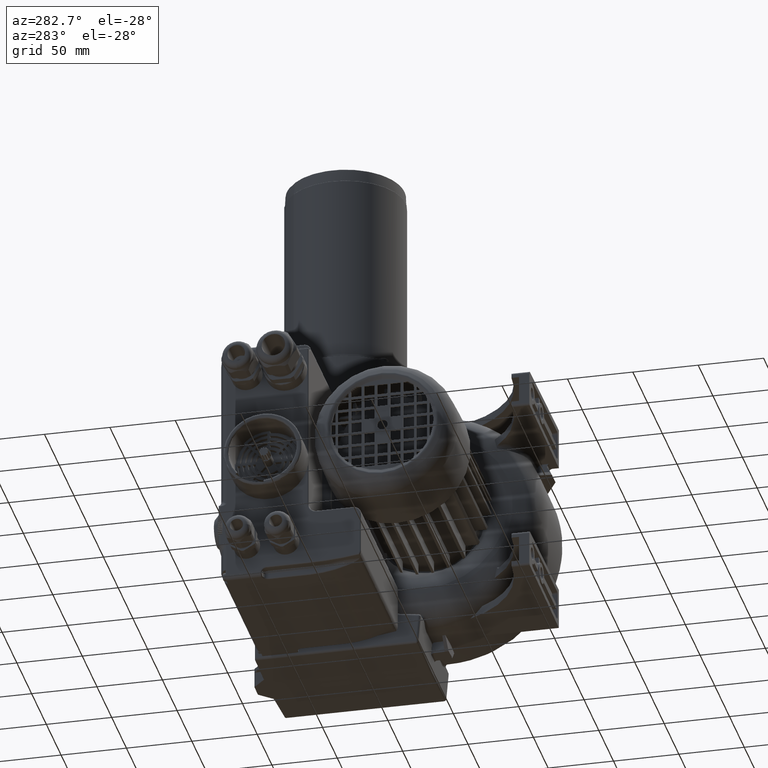
[diagram: clean part render]
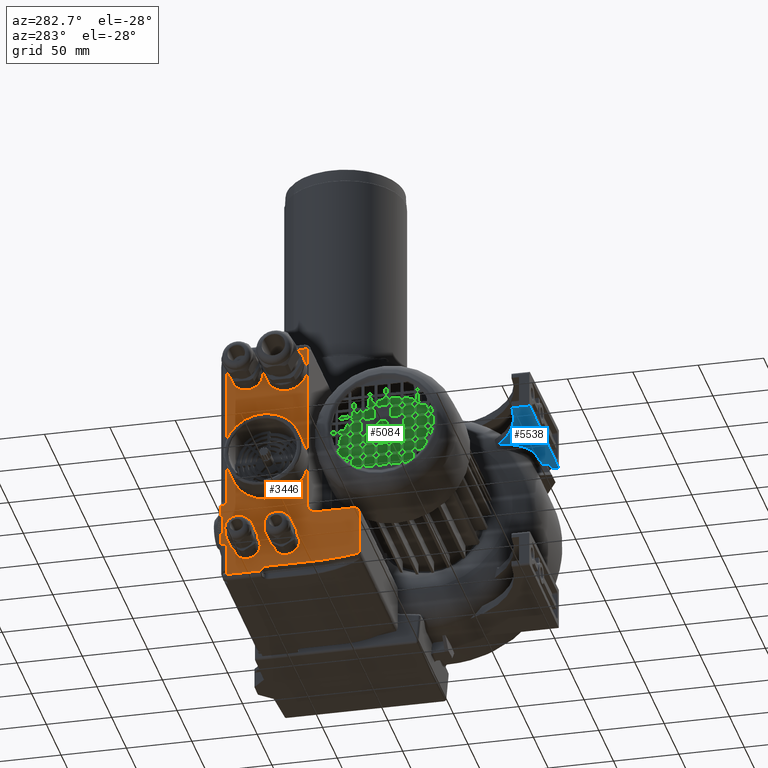
[diagram: same view with three faces highlighted in distinct colors, each labeled with its STEP entity id]
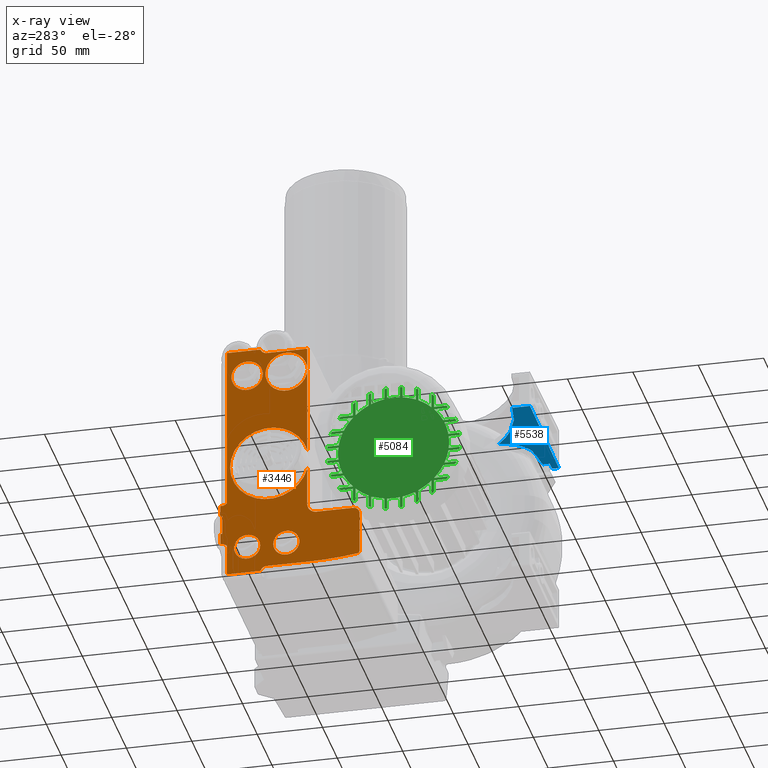
[diagram: x-ray of the same camera — body ghosted, the three highlighted faces saturated]
A machine part, auxiliary view with three faces highlighted in distinct colors.
The next image is the same camera in x-ray (body ghosted, the three faces saturated) — at least one of them is partly hidden behind the body in this view.
Their STEP definitions:

[orange] entity #3446 — the highlighted planar face has unit normal (1, 0, 0).
#3446 = ADVANCED_FACE( '', ( #8755, #8756, #8757, #8758 ), #8759, .F. );
#8755 = FACE_OUTER_BOUND( '', #17128, .T. );
#8756 = FACE_BOUND( '', #17129, .T. );
#8757 = FACE_BOUND( '', #17130, .T. );
#8758 = FACE_BOUND( '', #17131, .T. );
#8759 = PLANE( '', #17132 );
#17128 = EDGE_LOOP( '', ( #32372, #32373, #32374, #32375, #32376, #32377, #32378, #32379, #32380, #32381, #32382, #32383, #32384, #32385, #32386, #32387, #32388, #32389, #32390, #32391, #32392, #32393, #32394, #32395, #32396, #32397, #32398, #32399, #32400, #32401 ) );
#17129 = EDGE_LOOP( '', ( #32402 ) );
#17130 = EDGE_LOOP( '', ( #32403 ) );
#17131 = EDGE_LOOP( '', ( #32404 ) );
#17132 = AXIS2_PLACEMENT_3D( '', #32405, #32406, #32407 );
#32372 = ORIENTED_EDGE( '', *, *, #52436, .T. );
#32373 = ORIENTED_EDGE( '', *, *, #50361, .F. );
#32374 = ORIENTED_EDGE( '', *, *, #52437, .F. );
#32375 = ORIENTED_EDGE( '', *, *, #50365, .F. );
#32376 = ORIENTED_EDGE( '', *, *, #52438, .F. );
#32377 = ORIENTED_EDGE( '', *, *, #52233, .F. );
#32378 = ORIENTED_EDGE( '', *, *, #52439, .F. );
#32379 = ORIENTED_EDGE( '', *, *, #49525, .F. );
#32380 = ORIENTED_EDGE( '', *, *, #52440, .F. );
#32381 = ORIENTED_EDGE( '', *, *, #50469, .F. );
#32382 = ORIENTED_EDGE( '', *, *, #52441, .F. );
#32383 = ORIENTED_EDGE( '', *, *, #52442, .T. );
#32384 = ORIENTED_EDGE( '', *, *, #52443, .F. );
#32385 = ORIENTED_EDGE( '', *, *, #52444, .F. );
#32386 = ORIENTED_EDGE( '', *, *, #52445, .F. );
#32387 = ORIENTED_EDGE( '', *, *, #52446, .T. );
#32388 = ORIENTED_EDGE( '', *, *, #52447, .F. );
#32389 = ORIENTED_EDGE( '', *, *, #52448, .T. );
#32390 = ORIENTED_EDGE( '', *, *, #49759, .F. );
#32391 = ORIENTED_EDGE( '', *, *, #52449, .F. );
#32392 = ORIENTED_EDGE( '', *, *, #52450, .F. );
#32393 = ORIENTED_EDGE( '', *, *, #52451, .F. );
#32394 = ORIENTED_EDGE( '', *, *, #52452, .F. );
#32395 = ORIENTED_EDGE( '', *, *, #52453, .F. );
#32396 = ORIENTED_EDGE( '', *, *, #51545, .F. );
#32397 = ORIENTED_EDGE( '', *, *, #52454, .F. );
#32398 = ORIENTED_EDGE( '', *, *, #52455, .F. );
#32399 = ORIENTED_EDGE( '', *, *, #51540, .F. );
#32400 = ORIENTED_EDGE( '', *, *, #51435, .F. );
#32401 = ORIENTED_EDGE( '', *, *, #52456, .F. );
#32402 = ORIENTED_EDGE( '', *, *, #52457, .T. );
#32403 = ORIENTED_EDGE( '', *, *, #52458, .T. );
#32404 = ORIENTED_EDGE( '', *, *, #52459, .T. );
#32405 = CARTESIAN_POINT( '', ( -175.000000000011, 120.000000000003, -108.000000000000 ) );
#32406 = DIRECTION( '', ( 1.00000000000000, 0.000000000000000, 0.000000000000000 ) );
#32407 = DIRECTION( '', ( 0.000000000000000, 1.00000000000000, 0.000000000000000 ) );
#49525 = EDGE_CURVE( '', #58607, #58609, #58610, .T. );
#49759 = EDGE_CURVE( '', #59040, #59038, #59042, .T. );
#50361 = EDGE_CURVE( '', #60106, #60107, #60108, .T. );
#50365 = EDGE_CURVE( '', #60113, #60106, #60115, .T. );
#50469 = EDGE_CURVE( '', #60294, #60290, #60296, .T. );
#51435 = EDGE_CURVE( '', #61961, #61962, #61963, .T. );
#51540 = EDGE_CURVE( '', #61962, #62128, #62129, .T. );
#51545 = EDGE_CURVE( '', #62134, #62136, #62137, .T. );
#52233 = EDGE_CURVE( '', #63266, #63268, #63269, .T. );
#52436 = EDGE_CURVE( '', #63594, #60107, #63595, .T. );
#52437 = EDGE_CURVE( '', #60106, #60106, #63596, .T. );
#52438 = EDGE_CURVE( '', #63268, #60113, #63597, .T. );
#52439 = EDGE_CURVE( '', #58609, #63266, #63598, .T. );
#52440 = EDGE_CURVE( '', #60290, #58607, #63599, .T. );
#52441 = EDGE_CURVE( '', #63600, #60294, #63601, .T. );
#52442 = EDGE_CURVE( '', #63600, #63602, #63603, .T. );
#52443 = EDGE_CURVE( '', #63604, #63602, #63605, .T. );
#52444 = EDGE_CURVE( '', #63606, #63604, #63607, .T. );
#52445 = EDGE_CURVE( '', #63608, #63606, #63609, .T. );
#52446 = EDGE_CURVE( '', #63608, #63610, #63611, .T. );
#52447 = EDGE_CURVE( '', #63612, #63610, #63613, .T. );
#52448 = EDGE_CURVE( '', #63612, #59038, #63614, .T. );
#52449 = EDGE_CURVE( '', #63615, #59040, #63616, .T. );
#52450 = EDGE_CURVE( '', #63617, #63615, #63618, .T. );
#52451 = EDGE_CURVE( '', #63619, #63617, #63620, .T. );
#52452 = EDGE_CURVE( '', #63621, #63619, #63622, .T. );
#52453 = EDGE_CURVE( '', #62136, #63621, #63623, .T. );
#52454 = EDGE_CURVE( '', #63624, #62134, #63625, .T. );
#52455 = EDGE_CURVE( '', #62128, #63624, #63626, .T. );
#52456 = EDGE_CURVE( '', #63594, #61961, #63627, .T. );
#52457 = EDGE_CURVE( '', #63628, #63628, #63629, .T. );
#52458 = EDGE_CURVE( '', #63630, #63630, #63631, .T. );
#52459 = EDGE_CURVE( '', #63632, #63632, #63633, .T. );
#58607 = VERTEX_POINT( '', #72240 );
#58609 = VERTEX_POINT( '', #72260 );
#58610 = LINE( '', #72261, #72262 );
#59038 = VERTEX_POINT( '', #72881 );
#59040 = VERTEX_POINT( '', #72888 );
#59042 = B_SPLINE_CURVE_WITH_KNOTS( '', 3, ( #72900, #72901, #72902, #72903, #72904, #72905, #72906, #72907, #72908, #72909, #72910, #72911, #72912, #72913, #72914, #72915, #72916 ), .UNSPECIFIED., .F., .F., ( 4, 1, 1, 1, 1, 1, 1, 1, 1, 1, 1, 1, 1, 1, 4 ), ( 0.000000000000000, 0.0248544262246792, 0.0514529417059084, 0.106011367356345, 0.162829707098330, 0.221010966300417, 0.339540863426373, 0.400041651618121, 0.461778975531372, 0.589534064819381, 0.722262658843240, 0.789572974780607, 0.859336407992152, 0.927294273316530, 1.00000000000000 ), .UNSPECIFIED. );
#60106 = VERTEX_POINT( '', #74991 );
#60107 = VERTEX_POINT( '', #74992 );
#60108 = LINE( '', #74993, #74994 );
#60113 = VERTEX_POINT( '', #75008 );
#60115 = LINE( '', #75010, #75011 );
#60290 = VERTEX_POINT( '', #75359 );
#60294 = VERTEX_POINT( '', #75368 );
#60296 = LINE( '', #75386, #75387 );
#61961 = VERTEX_POINT( '', #78635 );
#61962 = VERTEX_POINT( '', #78636 );
#61963 = CIRCLE( '', #78637, 7.00005017621489 );
#62128 = VERTEX_POINT( '', #78909 );
#62129 = LINE( '', #78910, #78911 );
#62134 = VERTEX_POINT( '', #78917 );
#62136 = VERTEX_POINT( '', #78919 );
#62137 = CIRCLE( '', #78920, 4.00161860504975 );
#63266 = VERTEX_POINT( '', #81138 );
#63268 = VERTEX_POINT( '', #81145 );
#63269 = CIRCLE( '', #81146, 4.99993740590280 );
#63594 = VERTEX_POINT( '', #81817 );
#63595 = CIRCLE( '', #81818, 30.0000000000070 );
#63596 = CIRCLE( '', #81819, 15.9999999999995 );
#63597 = LINE( '', #81820, #81821 );
#63598 = LINE( '', #81822, #81823 );
#63599 = B_SPLINE_CURVE_WITH_KNOTS( '', 3, ( #81824, #81825, #81826, #81827, #81828, #81829, #81830, #81831, #81832, #81833, #81834, #81835, #81836, #81837, #81838, #81839, #81840 ), .UNSPECIFIED., .F., .F., ( 4, 1, 1, 1, 1, 1, 1, 1, 1, 1, 1, 1, 1, 1, 4 ), ( 0.000000000000000, 0.0502983762091229, 0.0990828971464211, 0.146452639673118, 0.218263100192218, 0.288844962156992, 0.424656457041140, 0.491436950372013, 0.557173818906280, 0.683806825976599, 0.804004467524430, 0.860880201873473, 0.912066730855403, 0.956352816552004, 1.00000000000000 ), .UNSPECIFIED. );
#63600 = VERTEX_POINT( '', #81841 );
#63601 = LINE( '', #81842, #81843 );
#63602 = VERTEX_POINT( '', #81844 );
#63603 = LINE( '', #81845, #81846 );
#63604 = VERTEX_POINT( '', #81847 );
#63605 = LINE( '', #81848, #81849 );
#63606 = VERTEX_POINT( '', #81850 );
#63607 = LINE( '', #81851, #81852 );
#63608 = VERTEX_POINT( '', #81853 );
#63609 = LINE( '', #81854, #81855 );
#63610 = VERTEX_POINT( '', #81856 );
#63611 = LINE( '', #81857, #81858 );
#63612 = VERTEX_POINT( '', #81859 );
#63613 = LINE( '', #81860, #81861 );
#63614 = LINE( '', #81862, #81863 );
#63615 = VERTEX_POINT( '', #81864 );
#63616 = LINE( '', #81865, #81866 );
#63617 = VERTEX_POINT( '', #81867 );
#63618 = LINE( '', #81868, #81869 );
#63619 = VERTEX_POINT( '', #81870 );
#63620 = CIRCLE( '', #81871, 4.99993740591633 );
#63621 = VERTEX_POINT( '', #81872 );
#63622 = LINE( '', #81873, #81874 );
#63623 = CIRCLE( '', #81875, 267.584251856842 );
#63624 = VERTEX_POINT( '', #81876 );
#63625 = LINE( '', #81877, #81878 );
#63626 = CIRCLE( '', #81879, 5.00003563097921 );
#63627 = LINE( '', #81880, #81881 );
#63628 = VERTEX_POINT( '', #81882 );
#63629 = CIRCLE( '', #81883, 10.0000000000006 );
#63630 = VERTEX_POINT( '', #81884 );
#63631 = CIRCLE( '', #81885, 10.0000000000006 );
#63632 = VERTEX_POINT( '', #81886 );
#63633 = CIRCLE( '', #81887, 12.0000000000003 );
#72240 = CARTESIAN_POINT( '', ( -175.000000026451, 122.490924409431, -43.9964289286325 ) );
#72260 = CARTESIAN_POINT( '', ( -175.000000000005, 122.490924409432, 82.9999999999982 ) );
#72261 = CARTESIAN_POINT( '', ( -175.000000000011, 122.490924409432, -43.9964289286324 ) );
#72262 = VECTOR( '', #95552, 1000.00000000000 );
#72881 = CARTESIAN_POINT( '', ( -175.000000496240, 127.053415673088, -77.9357085334626 ) );
#72888 = CARTESIAN_POINT( '', ( -174.999999484383, 122.490924409234, -79.7035716827159 ) );
#72900 = CARTESIAN_POINT( '', ( -174.999998710948, 122.490924409302, -79.7035710713555 ) );
#72901 = CARTESIAN_POINT( '', ( -174.999996283816, 122.520306023805, -79.6741280507657 ) );
#72902 = CARTESIAN_POINT( '', ( -174.999991259236, 122.581131024735, -79.6131759286624 ) );
#72903 = CARTESIAN_POINT( '', ( -175.000008105823, 122.710443660484, -79.4916765061947 ) );
#72904 = CARTESIAN_POINT( '', ( -174.999995961435, 122.885139247296, -79.3405311063779 ) );
#72905 = CARTESIAN_POINT( '', ( -174.999998038958, 123.108867244847, -79.1658027431933 ) );
#72906 = CARTESIAN_POINT( '', ( -175.000005610841, 123.428600790123, -78.9408661116471 ) );
#72907 = CARTESIAN_POINT( '', ( -175.000000442370, 123.770371858349, -78.7373424494055 ) );
#72908 = CARTESIAN_POINT( '', ( -174.999999104826, 124.131327454133, -78.5580052538804 ) );
#72909 = CARTESIAN_POINT( '', ( -175.000001019312, 124.514965190468, -78.3907437200762 ) );
#72910 = CARTESIAN_POINT( '', ( -174.999995257162, 125.024898017544, -78.2125800830533 ) );
#72911 = CARTESIAN_POINT( '', ( -175.000012366319, 125.558797209567, -78.0827670706672 ) );
#72912 = CARTESIAN_POINT( '', ( -174.999977812756, 126.004128612046, -78.0074428507462 ) );
#72913 = CARTESIAN_POINT( '', ( -175.000008840766, 126.344949194835, -77.9668488987309 ) );
#72914 = CARTESIAN_POINT( '', ( -174.999989322933, 126.696310905572, -77.9406958825119 ) );
#72915 = CARTESIAN_POINT( '', ( -174.999997179639, 126.931732003778, -77.9374085604653 ) );
#72916 = CARTESIAN_POINT( '', ( -175.000001240586, 127.053415673144, -77.9357094204474 ) );
#74991 = CARTESIAN_POINT( '', ( -175.000000000011, 61.0000000000037, 62.0000000000060 ) );
#74992 = CARTESIAN_POINT( '', ( -175.000000000064, 61.0000000007298, -6.31885425045682 ) );
#74993 = CARTESIAN_POINT( '', ( -175.000000000011, 61.0000000000100, 79.5000000000122 ) );
#74994 = VECTOR( '', #96676, 1000.00000000000 );
#75008 = CARTESIAN_POINT( '', ( -175.000000000000, 61.0000000000100, 79.5000000000122 ) );
#75010 = CARTESIAN_POINT( '', ( -175.000000000011, 61.0000000000100, 79.5000000000122 ) );
#75011 = VECTOR( '', #96681, 1000.00000000000 );
#75359 = CARTESIAN_POINT( '', ( -175.000000712918, 127.053415673121, -45.7642912083099 ) );
#75368 = CARTESIAN_POINT( '', ( -175.000000000000, 127.499999999998, -45.7642920578518 ) );
#75386 = CARTESIAN_POINT( '', ( -175.000000000011, 127.499999999998, -45.7642920578470 ) );
#75387 = VECTOR( '', #96800, 1000.00000000000 );
#78635 = CARTESIAN_POINT( '', ( -175.000000000004, 61.0000000000109, -51.9999999999952 ) );
#78636 = CARTESIAN_POINT( '', ( -175.000000000004, 54.0000000000126, -58.9999999999926 ) );
#78637 = AXIS2_PLACEMENT_3D( '', #97915, #97916, #97917 );
#78909 = CARTESIAN_POINT( '', ( -175.000000000004, 25.9999999999976, -58.9999999999926 ) );
#78910 = CARTESIAN_POINT( '', ( -175.000000000011, 54.0000000000126, -58.9999999999926 ) );
#78911 = VECTOR( '', #98034, 1000.00000000000 );
#78917 = CARTESIAN_POINT( '', ( -175.000000000004, 21.0000000000000, -95.3609848024394 ) );
#78919 = CARTESIAN_POINT( '', ( -174.999999999978, 21.7985594408784, -97.7590679196386 ) );
#78920 = AXIS2_PLACEMENT_3D( '', #98042, #98043, #98044 );
#81138 = CARTESIAN_POINT( '', ( -175.000000000000, 96.7696960070836, 82.9999999999978 ) );
#81145 = CARTESIAN_POINT( '', ( -175.000000000004, 91.9999999999876, 79.5000000000122 ) );
#81146 = AXIS2_PLACEMENT_3D( '', #98879, #98880, #98881 );
#81817 = CARTESIAN_POINT( '', ( -175.000000000003, 61.0000000008888, -21.6811457496153 ) );
#81818 = AXIS2_PLACEMENT_3D( '', #99122, #99123, #99124 );
#81819 = AXIS2_PLACEMENT_3D( '', #99125, #99126, #99127 );
#81820 = CARTESIAN_POINT( '', ( -175.000000000011, 91.9999999999876, 79.5000000000122 ) );
#81821 = VECTOR( '', #99128, 1000.00000000000 );
#81822 = CARTESIAN_POINT( '', ( -175.000000000011, 120.000000000003, 82.9999999999982 ) );
#81823 = VECTOR( '', #99129, 1000.00000000000 );
#81824 = CARTESIAN_POINT( '', ( -175.000001782288, 127.053415673227, -45.7642899339948 ) );
#81825 = CARTESIAN_POINT( '', ( -174.999992658552, 126.969237696252, -45.7634761685985 ) );
#81826 = CARTESIAN_POINT( '', ( -174.999974685681, 126.803415288787, -45.7618731301083 ) );
#81827 = CARTESIAN_POINT( '', ( -174.999968606745, 126.558588014826, -45.7491472035103 ) );
#81828 = CARTESIAN_POINT( '', ( -175.000021693112, 126.278428823872, -45.7259175734181 ) );
#81829 = CARTESIAN_POINT( '', ( -174.999951275417, 125.963164569766, -45.6864767500083 ) );
#81830 = CARTESIAN_POINT( '', ( -175.000020787216, 125.504461510734, -45.6060833810098 ) );
#81831 = CARTESIAN_POINT( '', ( -175.000002543173, 125.060159749157, -45.4946434074884 ) );
#81832 = CARTESIAN_POINT( '', ( -174.999990560042, 124.634329968100, -45.3515344959888 ) );
#81833 = CARTESIAN_POINT( '', ( -175.000020484523, 124.231040872395, -45.1916214192379 ) );
#81834 = CARTESIAN_POINT( '', ( -175.000006376838, 123.759276611140, -44.9633197515677 ) );
#81835 = CARTESIAN_POINT( '', ( -174.999969059911, 123.327781759251, -44.6928494123040 ) );
#81836 = CARTESIAN_POINT( '', ( -175.000036873443, 123.020123742499, -44.4662101841147 ) );
#81837 = CARTESIAN_POINT( '', ( -174.999988332213, 122.822360605662, -44.3051938182582 ) );
#81838 = CARTESIAN_POINT( '', ( -175.000004704662, 122.647508838315, -44.1513069086058 ) );
#81839 = CARTESIAN_POINT( '', ( -175.000001604791, 122.542865781861, -44.0478042467040 ) );
#81840 = CARTESIAN_POINT( '', ( -175.000000066117, 122.490924409431, -43.9964289286324 ) );
#81841 = CARTESIAN_POINT( '', ( -175.000000000000, 127.499999999998, -54.4398717959874 ) );
#81842 = CARTESIAN_POINT( '', ( -175.000000000011, 127.499999999998, -54.4398717959848 ) );
#81843 = VECTOR( '', #99130, 1000.00000000000 );
#81844 = CARTESIAN_POINT( '', ( -175.000000000005, 126.000000000004, -54.4398717959882 ) );
#81845 = CARTESIAN_POINT( '', ( -175.000000000011, 127.499999999998, -54.4398717959848 ) );
#81846 = VECTOR( '', #99131, 1000.00000000000 );
#81847 = CARTESIAN_POINT( '', ( -175.000000000011, 126.000000000004, -55.9277807645858 ) );
#81848 = CARTESIAN_POINT( '', ( -175.000000000011, 126.000000000004, -55.9277807645856 ) );
#81849 = VECTOR( '', #99132, 1000.00000000000 );
#81850 = CARTESIAN_POINT( '', ( -175.000000000011, 126.000000000004, -67.7722192354029 ) );
#81851 = CARTESIAN_POINT( '', ( -175.000000000011, 126.000000000004, -55.9277807645856 ) );
#81852 = VECTOR( '', #99133, 1000.00000000000 );
#81853 = CARTESIAN_POINT( '', ( -175.000000000005, 126.000000000004, -69.2601282040250 ) );
#81854 = CARTESIAN_POINT( '', ( -175.000000000011, 126.000000000004, -55.9277807645856 ) );
#81855 = VECTOR( '', #99134, 1000.00000000000 );
#81856 = CARTESIAN_POINT( '', ( -175.000000000000, 127.499999999998, -69.2601282040259 ) );
#81857 = CARTESIAN_POINT( '', ( -175.000000000011, 126.000000000004, -69.2601282040284 ) );
#81858 = VECTOR( '', #99135, 1000.00000000000 );
#81859 = CARTESIAN_POINT( '', ( -175.000000000005, 127.499999999998, -77.9357079421398 ) );
#81860 = CARTESIAN_POINT( '', ( -175.000000000011, 127.499999999998, -77.9357079421408 ) );
#81861 = VECTOR( '', #99136, 1000.00000000000 );
#81862 = CARTESIAN_POINT( '', ( -175.000000000011, 127.499999999998, -77.9357079421408 ) );
#81863 = VECTOR( '', #99137, 1000.00000000000 );
#81864 = CARTESIAN_POINT( '', ( -175.000000000005, 122.490924409432, -103.999999999990 ) );
#81865 = CARTESIAN_POINT( '', ( -175.000000000011, 122.490924409432, -103.999999999990 ) );
#81866 = VECTOR( '', #99138, 1000.00000000000 );
#81867 = CARTESIAN_POINT( '', ( -175.000000000003, 96.7696960070842, -103.999999999991 ) );
#81868 = CARTESIAN_POINT( '', ( -175.000000000011, 120.000000000003, -103.999999999990 ) );
#81869 = VECTOR( '', #99139, 1000.00000000000 );
#81870 = CARTESIAN_POINT( '', ( -175.000000000004, 91.9999999999876, -100.500000000004 ) );
#81871 = AXIS2_PLACEMENT_3D( '', #99140, #99141, #99142 );
#81872 = CARTESIAN_POINT( '', ( -174.999999999984, 59.9999999999886, -100.500004290750 ) );
#81873 = CARTESIAN_POINT( '', ( -175.000000000011, 60.0000000000394, -100.500000000004 ) );
#81874 = VECTOR( '', #99143, 1000.00000000000 );
#81875 = AXIS2_PLACEMENT_3D( '', #99144, #99145, #99146 );
#81876 = CARTESIAN_POINT( '', ( -175.000000000004, 21.0000000000000, -63.9999999999980 ) );
#81877 = CARTESIAN_POINT( '', ( -175.000000000011, 21.0000000000000, -63.9999999999980 ) );
#81878 = VECTOR( '', #99147, 1000.00000000000 );
#81879 = AXIS2_PLACEMENT_3D( '', #99148, #99149, #99150 );
#81880 = CARTESIAN_POINT( '', ( -175.000000000011, 61.0000000013308, -21.6811457528466 ) );
#81881 = VECTOR( '', #99151, 1000.00000000000 );
#81882 = CARTESIAN_POINT( '', ( -175.000000000011, 117.000000000004, -82.5000000000303 ) );
#81883 = AXIS2_PLACEMENT_3D( '', #99152, #99153, #99154 );
#81884 = CARTESIAN_POINT( '', ( -175.000000000011, 86.9999999999974, -82.5000000000303 ) );
#81885 = AXIS2_PLACEMENT_3D( '', #99155, #99156, #99157 );
#81886 = CARTESIAN_POINT( '', ( -175.000000000011, 118.999999999576, 61.9998985943414 ) );
#81887 = AXIS2_PLACEMENT_3D( '', #99158, #99159, #99160 );
#95552 = DIRECTION( '', ( 0.000000000000000, 0.000000000000000, 1.00000000000000 ) );
#96676 = DIRECTION( '', ( 0.000000000000000, 0.000000000000000, -1.00000000000000 ) );
#96681 = DIRECTION( '', ( 0.000000000000000, 0.000000000000000, -1.00000000000000 ) );
#96800 = DIRECTION( '', ( 0.000000000000000, -1.00000000000000, -2.52580873298600E-014 ) );
#97915 = CARTESIAN_POINT( '', ( -175.000000000011, 53.9999498239749, -51.9999498239575 ) );
#97916 = DIRECTION( '', ( -1.00000000000000, 0.000000000000000, 0.000000000000000 ) );
#97917 = DIRECTION( '', ( 0.000000000000000, 0.999999999974310, -7.16795399961593E-006 ) );
#98034 = DIRECTION( '', ( 0.000000000000000, -1.00000000000000, 0.000000000000000 ) );
#98042 = CARTESIAN_POINT( '', ( -175.000000000011, 25.0016185687516, -95.3604458192080 ) );
#98043 = DIRECTION( '', ( 1.00000000000000, 0.000000000000000, 0.000000000000000 ) );
#98044 = DIRECTION( '', ( 0.000000000000000, -0.999999990929126, -0.000134691304852224 ) );
#98879 = CARTESIAN_POINT( '', ( -175.000000000011, 92.0000459316686, 84.4999374057040 ) );
#98880 = DIRECTION( '', ( -1.00000000000000, 0.000000000000000, 0.000000000000000 ) );
#98881 = DIRECTION( '', ( 0.000000000000000, 0.953941957310208, -0.299991236677290 ) );
#99122 = CARTESIAN_POINT( '', ( -175.000000000011, 89.9999999999956, -13.9999999999999 ) );
#99123 = DIRECTION( '', ( 1.00000000000000, 0.000000000000000, 0.000000000000000 ) );
#99124 = DIRECTION( '', ( 0.000000000000000, -5.15498746504300E-009, 1.00000000000000 ) );
#99125 = CARTESIAN_POINT( '', ( -175.000000000011, 76.9999999999968, 62.0000000000060 ) );
#99126 = DIRECTION( '', ( -1.00000000000000, 0.000000000000000, 0.000000000000000 ) );
#99127 = DIRECTION( '', ( 0.000000000000000, 1.00000000000000, 0.000000000000000 ) );
#99128 = DIRECTION( '', ( 0.000000000000000, -1.00000000000000, 0.000000000000000 ) );
#99129 = DIRECTION( '', ( 0.000000000000000, -1.00000000000000, 0.000000000000000 ) );
#99130 = DIRECTION( '', ( 0.000000000000000, 0.000000000000000, 1.00000000000000 ) );
#99131 = DIRECTION( '', ( -6.01592849610200E-014, -1.00000000000000, -6.76791955811500E-014 ) );
#99132 = DIRECTION( '', ( 4.54861130680200E-014, 0.000000000000000, 1.00000000000000 ) );
#99133 = DIRECTION( '', ( 4.54861130680200E-014, 0.000000000000000, 1.00000000000000 ) );
#99134 = DIRECTION( '', ( 4.54861130680200E-014, 0.000000000000000, 1.00000000000000 ) );
#99135 = DIRECTION( '', ( 6.01592849610200E-014, 1.00000000000000, -1.05278748681800E-013 ) );
#99136 = DIRECTION( '', ( 0.000000000000000, 0.000000000000000, 1.00000000000000 ) );
#99137 = DIRECTION( '', ( 0.000000000000000, -1.00000000000000, 0.000000000000000 ) );
#99138 = DIRECTION( '', ( 0.000000000000000, 0.000000000000000, 1.00000000000000 ) );
#99139 = DIRECTION( '', ( 0.000000000000000, 1.00000000000000, 0.000000000000000 ) );
#99140 = CARTESIAN_POINT( '', ( -175.000000000011, 92.0000459316586, -105.499937405710 ) );
#99141 = DIRECTION( '', ( -1.00000000000000, 0.000000000000000, 0.000000000000000 ) );
#99142 = DIRECTION( '', ( 0.000000000000000, -9.18644921068593E-006, 0.999999999957805 ) );
#99143 = DIRECTION( '', ( 0.000000000000000, 1.00000000000000, 0.000000000000000 ) );
#99144 = CARTESIAN_POINT( '', ( -174.999999999961, 59.9999999999886, 167.084243275346 ) );
#99145 = DIRECTION( '', ( 1.00000000000000, 0.000000000000000, 0.000000000000000 ) );
#99146 = DIRECTION( '', ( 0.000000000000000, -0.142764160844995, -0.989756734949667 ) );
#99147 = DIRECTION( '', ( 0.000000000000000, 0.000000000000000, -1.00000000000000 ) );
#99148 = CARTESIAN_POINT( '', ( -175.000000000011, 26.0000356308522, -64.0000356308449 ) );
#99149 = DIRECTION( '', ( 1.00000000000000, 0.000000000000000, 0.000000000000000 ) );
#99150 = DIRECTION( '', ( 0.000000000000000, -7.12612015038654E-006, 0.999999999974609 ) );
#99151 = DIRECTION( '', ( 0.000000000000000, -4.34789784947600E-011, -1.00000000000000 ) );
#99152 = CARTESIAN_POINT( '', ( -175.000000000011, 107.000000000004, -82.5000000000000 ) );
#99153 = DIRECTION( '', ( 1.00000000000000, 0.000000000000000, 0.000000000000000 ) );
#99154 = DIRECTION( '', ( 0.000000000000000, 1.00000000000000, -3.03202796203500E-012 ) );
#99155 = CARTESIAN_POINT( '', ( -175.000000000011, 76.9999999999968, -82.5000000000000 ) );
#99156 = DIRECTION( '', ( 1.00000000000000, 0.000000000000000, 0.000000000000000 ) );
#99157 = DIRECTION( '', ( 0.000000000000000, 1.00000000000000, -3.02977198884900E-012 ) );
#99158 = CARTESIAN_POINT( '', ( -175.000000000011, 107.000000000004, 62.0000000000060 ) );
#99159 = DIRECTION( '', ( 1.00000000000000, 0.000000000000000, 0.000000000000000 ) );
#99160 = DIRECTION( '', ( 0.000000000000000, 0.999999999919663, -1.26757063420795E-005 ) );

[blue] entity #5538 — the highlighted planar face has unit normal (-0.0175, 0, -0.9998).
#5538 = ADVANCED_FACE( '', ( #12041 ), #12042, .T. );
#12041 = FACE_OUTER_BOUND( '', #23748, .T. );
#12042 = PLANE( '', #23749 );
#23748 = EDGE_LOOP( '', ( #42338, #42339, #42340, #42341, #42342, #42343, #42344, #42345, #42346 ) );
#23749 = AXIS2_PLACEMENT_3D( '', #42347, #42348, #42349 );
#42338 = ORIENTED_EDGE( '', *, *, #56530, .T. );
#42339 = ORIENTED_EDGE( '', *, *, #54439, .T. );
#42340 = ORIENTED_EDGE( '', *, *, #56531, .T. );
#42341 = ORIENTED_EDGE( '', *, *, #56532, .F. );
#42342 = ORIENTED_EDGE( '', *, *, #50167, .T. );
#42343 = ORIENTED_EDGE( '', *, *, #54256, .F. );
#42344 = ORIENTED_EDGE( '', *, *, #55672, .F. );
#42345 = ORIENTED_EDGE( '', *, *, #55671, .F. );
#42346 = ORIENTED_EDGE( '', *, *, #56533, .T. );
#42347 = CARTESIAN_POINT( '', ( 0.000000000000000, 23.5000000000000, 51.4999999999972 ) );
#42348 = DIRECTION( '', ( -0.0174524064372799, 0.000000000000000, -0.999847695156391 ) );
#42349 = DIRECTION( '', ( -0.999847695156391, 0.000000000000000, 0.0174524064372799 ) );
#50167 = EDGE_CURVE( '', #59742, #59750, #59752, .T. );
#54256 = EDGE_CURVE( '', #66337, #59750, #66339, .T. );
#54439 = EDGE_CURVE( '', #66598, #66596, #66599, .T. );
#55671 = EDGE_CURVE( '', #68287, #68288, #68289, .T. );
#55672 = EDGE_CURVE( '', #68288, #66337, #68290, .T. );
#56530 = EDGE_CURVE( '', #69351, #66598, #69352, .T. );
#56531 = EDGE_CURVE( '', #66596, #69353, #69354, .T. );
#56532 = EDGE_CURVE( '', #59742, #69353, #69355, .T. );
#56533 = EDGE_CURVE( '', #68287, #69351, #69356, .T. );
#59742 = VERTEX_POINT( '', #74234 );
#59750 = VERTEX_POINT( '', #74317 );
#59752 = B_SPLINE_CURVE_WITH_KNOTS( '', 2, ( #74333, #74334, #74335, #74336, #74337, #74338, #74339, #74340, #74341, #74342, #74343, #74344, #74345, #74346, #74347, #74348, #74349 ), .UNSPECIFIED., .F., .F., ( 3, 2, 2, 2, 2, 2, 2, 2, 3 ), ( 0.000000000000000, 0.125000000000000, 0.250000000000000, 0.375000000000000, 0.500000000000000, 0.625000000000000, 0.750000000000000, 0.875000000000000, 1.00000000000000 ), .UNSPECIFIED. );
#66337 = VERTEX_POINT( '', #86801 );
#66339 = B_SPLINE_CURVE_WITH_KNOTS( '', 3, ( #86815, #86816, #86817, #86818, #86819, #86820, #86821, #86822, #86823, #86824, #86825, #86826, #86827, #86828, #86829, #86830, #86831, #86832, #86833, #86834, #86835, #86836, #86837, #86838, #86839, #86840, #86841, #86842, #86843, #86844, #86845, #86846, #86847, #86848, #86849, #86850, #86851, #86852, #86853, #86854, #86855, #86856, #86857, #86858, #86859, #86860, #86861, #86862, #86863, #86864, #86865, #86866 ), .UNSPECIFIED., .F., .F., ( 4, 1, 1, 1, 1, 1, 1, 1, 1, 1, 1, 1, 1, 1, 1, 1, 1, 1, 1, 1, 1, 1, 1, 1, 1, 1, 1, 1, 1, 1, 1, 1, 1, 1, 1, 1, 1, 1, 1, 1, 1, 1, 1, 1, 1, 1, 1, 1, 1, 4 ), ( 0.000000000000000, 0.0204081632653100, 0.0408163265306100, 0.0612244897959200, 0.0816326530612200, 0.102040816326500, 0.122448979591800, 0.142857142857100, 0.163265306122400, 0.183673469387800, 0.204081632653100, 0.224489795918400, 0.244897959183700, 0.265306122449000, 0.285714285714300, 0.306122448979600, 0.326530612244900, 0.346938775510200, 0.367346938775500, 0.387755102040800, 0.408163265306100, 0.428571428571400, 0.448979591836700, 0.469387755102000, 0.489795918367300, 0.510204081632700, 0.530612244898000, 0.551020408163300, 0.571428571428600, 0.591836734693900, 0.612244897959200, 0.632653061224500, 0.653061224489800, 0.673469387755100, 0.693877551020400, 0.714285714285700, 0.734693877551000, 0.755102040816300, 0.775510204081600, 0.795918367346900, 0.816326530612200, 0.836734693877600, 0.857142857142900, 0.877551020408200, 0.897959183673500, 0.918367346938800, 0.938775510204100, 0.959183673469400, 0.979591836734700, 1.00000000000000 ), .UNSPECIFIED. );
#66596 = VERTEX_POINT( '', #87354 );
#66598 = VERTEX_POINT( '', #87357 );
#66599 = LINE( '', #87358, #87359 );
#68287 = VERTEX_POINT( '', #90547 );
#68288 = VERTEX_POINT( '', #90548 );
#68289 = B_SPLINE_CURVE_WITH_KNOTS( '', 3, ( #90549, #90550, #90551, #90552, #90553, #90554 ), .UNSPECIFIED., .F., .F., ( 4, 1, 1, 4 ), ( 0.000000000000000, 0.333333333333300, 0.666666666666700, 1.00000000000000 ), .UNSPECIFIED. );
#68290 = B_SPLINE_CURVE_WITH_KNOTS( '', 3, ( #90555, #90556, #90557, #90558, #90559, #90560, #90561, #90562, #90563, #90564 ), .UNSPECIFIED., .F., .F., ( 4, 1, 1, 1, 1, 1, 1, 4 ), ( 0.000000000000000, 0.142857142857100, 0.285714285714300, 0.428571428571400, 0.571428571428600, 0.714285714285700, 0.857142857142900, 1.00000000000000 ), .UNSPECIFIED. );
#69351 = VERTEX_POINT( '', #92615 );
#69352 = LINE( '', #92616, #92617 );
#69353 = VERTEX_POINT( '', #92618 );
#69354 = LINE( '', #92619, #92620 );
#69355 = LINE( '', #92621, #92622 );
#69356 = LINE( '', #92623, #92624 );
#74234 = CARTESIAN_POINT( '', ( -98.0349048128818, -78.2434894591395, 53.2112056287352 ) );
#74317 = CARTESIAN_POINT( '', ( -45.6021891607964, -56.2741807380514, 52.2959891725878 ) );
#74333 = CARTESIAN_POINT( '', ( -98.0349048128818, -78.2434894591393, 53.2112056287373 ) );
#74334 = CARTESIAN_POINT( '', ( -94.2834469610016, -78.1492185660189, 53.1457236883573 ) );
#74335 = CARTESIAN_POINT( '', ( -90.5595073535339, -77.6967331387051, 53.0807220807202 ) );
#74336 = CARTESIAN_POINT( '', ( -86.9338118477616, -77.2561850758557, 53.0174353302570 ) );
#74337 = CARTESIAN_POINT( '', ( -83.3647973819591, -76.4799011224039, 52.9551379510267 ) );
#74338 = CARTESIAN_POINT( '', ( -79.8568684650688, -75.7169036747542, 52.8939068240188 ) );
#74339 = CARTESIAN_POINT( '', ( -76.4328641428562, -74.6357511473464, 52.8341406062601 ) );
#74340 = CARTESIAN_POINT( '', ( -73.0381017853191, -73.5638319681008, 52.7748848088934 ) );
#74341 = CARTESIAN_POINT( '', ( -69.7538626587556, -72.1877857935282, 52.7175582016995 ) );
#74342 = CARTESIAN_POINT( '', ( -66.4705425711078, -70.8121246822644, 52.6602476363895 ) );
#74343 = CARTESIAN_POINT( '', ( -63.3246518935806, -69.1435035495802, 52.6053359103562 ) );
#74344 = CARTESIAN_POINT( '', ( -60.1534371134604, -67.4614501851104, 52.5499821504679 ) );
#74345 = CARTESIAN_POINT( '', ( -57.1483851877865, -65.4953765530328, 52.4975287739926 ) );
#74346 = CARTESIAN_POINT( '', ( -54.0927099114072, -63.4961822836247, 52.4441917636439 ) );
#74347 = CARTESIAN_POINT( '', ( -51.2349214511126, -61.2198689638970, 52.3943088805183 ) );
#74348 = CARTESIAN_POINT( '', ( -48.3008963863714, -58.8828309262399, 52.3430952825123 ) );
#74349 = CARTESIAN_POINT( '', ( -45.6021891607934, -56.2741807380530, 52.2959891726675 ) );
#86801 = CARTESIAN_POINT( '', ( -22.9304421423676, -79.6896630692512, 51.9002523564321 ) );
#86815 = CARTESIAN_POINT( '', ( -22.9304421424606, -79.6896630692502, 51.9002523564378 ) );
#86816 = CARTESIAN_POINT( '', ( -23.1337460657377, -79.6875293399896, 51.9038010396122 ) );
#86817 = CARTESIAN_POINT( '', ( -23.5485711482753, -79.6769159170712, 51.9110418383640 ) );
#86818 = CARTESIAN_POINT( '', ( -24.2009982535506, -79.6389648429100, 51.9224299958518 ) );
#86819 = CARTESIAN_POINT( '', ( -24.8669002781599, -79.5776161226308, 51.9340533589144 ) );
#86820 = CARTESIAN_POINT( '', ( -25.5355620071076, -79.4929461160758, 51.9457248928230 ) );
#86821 = CARTESIAN_POINT( '', ( -26.1945777614382, -79.3866673766652, 51.9572280555926 ) );
#86822 = CARTESIAN_POINT( '', ( -26.8330914680252, -79.2617958613592, 51.9683733537998 ) );
#86823 = CARTESIAN_POINT( '', ( -27.4372540373710, -79.1235775179844, 51.9789190506662 ) );
#86824 = CARTESIAN_POINT( '', ( -28.0104521224178, -78.9743221670418, 51.9889242604754 ) );
#86825 = CARTESIAN_POINT( '', ( -28.5678343993452, -78.8119816056936, 51.9986534042886 ) );
#86826 = CARTESIAN_POINT( '', ( -29.1211561978556, -78.6337302865810, 52.0083116722212 ) );
#86827 = CARTESIAN_POINT( '', ( -29.6839271308078, -78.4344479158806, 52.0181348753840 ) );
#86828 = CARTESIAN_POINT( '', ( -30.2462861177716, -78.2165758361824, 52.0279508880354 ) );
#86829 = CARTESIAN_POINT( '', ( -30.7982411267880, -77.9841974835156, 52.0375852985354 ) );
#86830 = CARTESIAN_POINT( '', ( -31.3417507738026, -77.7370315068808, 52.0470722947252 ) );
#86831 = CARTESIAN_POINT( '', ( -31.8783640027330, -77.4746728804688, 52.0564389134824 ) );
#86832 = CARTESIAN_POINT( '', ( -32.4169382249220, -77.1921595084126, 52.0658397614828 ) );
#86833 = CARTESIAN_POINT( '', ( -32.9570948482896, -76.8884891231206, 52.0752682304338 ) );
#86834 = CARTESIAN_POINT( '', ( -33.4806088446174, -76.5741600047646, 52.0844062012104 ) );
#86835 = CARTESIAN_POINT( '', ( -33.9906481882400, -76.2484516122406, 52.0933089710858 ) );
#86836 = CARTESIAN_POINT( '', ( -34.5033291668384, -75.9007172638448, 52.1022578508512 ) );
#86837 = CARTESIAN_POINT( '', ( -35.0304180063086, -75.5208968267892, 52.1114582207664 ) );
#86838 = CARTESIAN_POINT( '', ( -35.5841719001702, -75.0958864302026, 52.1211240309242 ) );
#86839 = CARTESIAN_POINT( '', ( -36.1507116081858, -74.6315909488640, 52.1310130183344 ) );
#86840 = CARTESIAN_POINT( '', ( -36.7165814901852, -74.1362023420562, 52.1408903138452 ) );
#86841 = CARTESIAN_POINT( '', ( -37.2680604701054, -73.6210216565446, 52.1505164152432 ) );
#86842 = CARTESIAN_POINT( '', ( -37.8030554313808, -73.0888128788002, 52.1598547870414 ) );
#86843 = CARTESIAN_POINT( '', ( -38.3238959941426, -72.5375914354236, 52.1689460928872 ) );
#86844 = CARTESIAN_POINT( '', ( -38.8311241342436, -71.9664892321388, 52.1777997930106 ) );
#86845 = CARTESIAN_POINT( '', ( -39.3258872261988, -71.3731867826780, 52.1864359149052 ) );
#86846 = CARTESIAN_POINT( '', ( -39.8104159299614, -70.7538166446618, 52.1948933948660 ) );
#86847 = CARTESIAN_POINT( '', ( -40.2873075813324, -70.1034562166070, 52.2032175696070 ) );
#86848 = CARTESIAN_POINT( '', ( -40.7564218908286, -69.4199120850188, 52.2114059903396 ) );
#86849 = CARTESIAN_POINT( '', ( -41.2054977685704, -68.7197517378188, 52.2192446389498 ) );
#86850 = CARTESIAN_POINT( '', ( -41.6253844809416, -68.0190446252150, 52.2265737887822 ) );
#86851 = CARTESIAN_POINT( '', ( -42.0087627876658, -67.3354837414124, 52.2332656820024 ) );
#86852 = CARTESIAN_POINT( '', ( -42.3655990153686, -66.6570114987660, 52.2394942815340 ) );
#86853 = CARTESIAN_POINT( '', ( -42.7037828807318, -65.9711808205190, 52.2453973028750 ) );
#86854 = CARTESIAN_POINT( '', ( -43.0307884216648, -65.2629018425154, 52.2511052058102 ) );
#86855 = CARTESIAN_POINT( '', ( -43.3488115493460, -64.5242878237088, 52.2566563201588 ) );
#86856 = CARTESIAN_POINT( '', ( -43.6483662509466, -63.7753811492874, 52.2618850669276 ) );
#86857 = CARTESIAN_POINT( '', ( -43.9264694247112, -63.0248109556378, 52.2667393758880 ) );
#86858 = CARTESIAN_POINT( '', ( -44.1840436435216, -62.2729127923810, 52.2712353505892 ) );
#86859 = CARTESIAN_POINT( '', ( -44.4259848717794, -61.5078127941106, 52.2754584504488 ) );
#86860 = CARTESIAN_POINT( '', ( -44.6596581303654, -60.7038106034390, 52.2795372323344 ) );
#86861 = CARTESIAN_POINT( '', ( -44.8836454909750, -59.8572082587756, 52.2834469462574 ) );
#86862 = CARTESIAN_POINT( '', ( -45.0932542374412, -58.9786359130282, 52.2871056805452 ) );
#86863 = CARTESIAN_POINT( '', ( -45.2849953892388, -58.0793074745030, 52.2904525347862 ) );
#86864 = CARTESIAN_POINT( '', ( -45.4565012687308, -57.1713524312092, 52.2934461810468 ) );
#86865 = CARTESIAN_POINT( '', ( -45.5558328338468, -56.5727772703482, 52.2951800199718 ) );
#86866 = CARTESIAN_POINT( '', ( -45.6021891607936, -56.2741807380530, 52.2959891726588 ) );
#87354 = CARTESIAN_POINT( '', ( 0.000000000000000, -91.9999999999876, 51.4999999999972 ) );
#87357 = CARTESIAN_POINT( '', ( 9.66242060321254E-010, -86.8890091469762, 51.5000000553491 ) );
#87358 = CARTESIAN_POINT( '', ( 0.000000000000000, -86.8890091469834, 51.4999999999972 ) );
#87359 = VECTOR( '', #101527, 1000.00000000000 );
#90547 = CARTESIAN_POINT( '', ( -8.00000000000081, -81.5975110803691, 51.6396405194157 ) );
#90548 = CARTESIAN_POINT( '', ( -11.7337228234167, -80.9194451194094, 51.7048128937234 ) );
#90549 = CARTESIAN_POINT( '', ( -8.00000000000102, -81.5975110803690, 51.6396405194202 ) );
#90550 = CARTESIAN_POINT( '', ( -8.43928061686348, -81.5163089629920, 51.6473081911308 ) );
#90551 = CARTESIAN_POINT( '', ( -9.30141882992930, -81.3568345022870, 51.6623568695932 ) );
#90552 = CARTESIAN_POINT( '', ( -10.5490117392927, -81.1288393603864, 51.6841336848406 ) );
#90553 = CARTESIAN_POINT( '', ( -11.3445064965500, -80.9874849920670, 51.6980190974812 ) );
#90554 = CARTESIAN_POINT( '', ( -11.7337228234167, -80.9194451194094, 51.7048128937234 ) );
#90555 = CARTESIAN_POINT( '', ( -11.7337228234167, -80.9194451194094, 51.7048128937234 ) );
#90556 = CARTESIAN_POINT( '', ( -12.5059440984072, -80.7844512006500, 51.7182920662316 ) );
#90557 = CARTESIAN_POINT( '', ( -13.9672037562732, -80.5391724260574, 51.7437984484420 ) );
#90558 = CARTESIAN_POINT( '', ( -15.8946332505633, -80.2527253577792, 51.7774418553994 ) );
#90559 = CARTESIAN_POINT( '', ( -17.6042427612358, -80.0366118633370, 51.8072832004156 ) );
#90560 = CARTESIAN_POINT( '', ( -19.1271014545674, -79.8812903304958, 51.8338647977730 ) );
#90561 = CARTESIAN_POINT( '', ( -20.5004770850065, -79.7761615582798, 51.8578371585658 ) );
#90562 = CARTESIAN_POINT( '', ( -21.7560951089826, -79.7125914293370, 51.8797540527050 ) );
#90563 = CARTESIAN_POINT( '', ( -22.5483410673704, -79.6936733226724, 51.8935827573564 ) );
#90564 = CARTESIAN_POINT( '', ( -22.9304421424606, -79.6896630692502, 51.9002523564378 ) );
#92615 = CARTESIAN_POINT( '', ( -7.99999999917283, -86.8093064507327, 51.6396405668642 ) );
#92616 = CARTESIAN_POINT( '', ( -8.00000000000102, -86.8093064507376, 51.6396405194202 ) );
#92617 = VECTOR( '', #103774, 1000.00000000000 );
#92618 = CARTESIAN_POINT( '', ( -98.0349048128818, -91.9999999999876, 53.2112056287363 ) );
#92619 = CARTESIAN_POINT( '', ( 0.000000000000000, -91.9999999999876, 51.4999999999972 ) );
#92620 = VECTOR( '', #103775, 1000.00000000000 );
#92621 = CARTESIAN_POINT( '', ( -98.0349048128818, -78.2434894591394, 53.2112056287348 ) );
#92622 = VECTOR( '', #103776, 1000.00000000000 );
#92623 = CARTESIAN_POINT( '', ( -8.00000000000102, -81.5975110803690, 51.6396405194202 ) );
#92624 = VECTOR( '', #103777, 1000.00000000000 );
#101527 = DIRECTION( '', ( 0.000000000000000, -1.00000000000000, 0.000000000000000 ) );
#103774 = DIRECTION( '', ( 0.999798092459781, -0.00996082545813481, -0.0174515406189896 ) );
#103775 = DIRECTION( '', ( -0.999847695156391, 0.000000000000000, 0.0174524064372799 ) );
#103776 = DIRECTION( '', ( 0.000000000000000, -1.00000000000000, 0.000000000000000 ) );
#103777 = DIRECTION( '', ( 0.000000000000000, -1.00000000000000, 0.000000000000000 ) );

[green] entity #5084 — the highlighted planar face has unit normal (1, 0, 0).
#5084 = ADVANCED_FACE( '', ( #11351 ), #11352, .F. );
#11351 = FACE_OUTER_BOUND( '', #22337, .T. );
#11352 = PLANE( '', #22338 );
#22337 = EDGE_LOOP( '', ( #40298, #40299, #40300, #40301, #40302, #40303, #40304, #40305, #40306, #40307, #40308, #40309, #40310, #40311, #40312, #40313, #40314, #40315, #40316, #40317, #40318, #40319, #40320, #40321, #40322, #40323, #40324, #40325, #40326, #40327, #40328, #40329, #40330, #40331, #40332, #40333, #40334, #40335, #40336, #40337, #40338, #40339, #40340, #40341, #40342, #40343, #40344, #40345, #40346, #40347, #40348, #40349, #40350, #40351, #40352, #40353, #40354, #40355, #40356, #40357, #40358, #40359, #40360, #40361, #40362, #40363, #40364, #40365, #40366, #40367, #40368, #40369, #40370, #40371, #40372, #40373, #40374, #40375, #40376, #40377, #40378, #40379, #40380, #40381, #40382, #40383, #40384, #40385, #40386, #40387, #40388, #40389 ) );
#22338 = AXIS2_PLACEMENT_3D( '', #40390, #40391, #40392 );
#40298 = ORIENTED_EDGE( '', *, *, #55917, .T. );
#40299 = ORIENTED_EDGE( '', *, *, #55918, .T. );
#40300 = ORIENTED_EDGE( '', *, *, #53062, .T. );
#40301 = ORIENTED_EDGE( '', *, *, #55140, .T. );
#40302 = ORIENTED_EDGE( '', *, *, #54680, .T. );
#40303 = ORIENTED_EDGE( '', *, *, #55919, .T. );
#40304 = ORIENTED_EDGE( '', *, *, #53487, .T. );
#40305 = ORIENTED_EDGE( '', *, *, #55920, .T. );
#40306 = ORIENTED_EDGE( '', *, *, #55921, .T. );
#40307 = ORIENTED_EDGE( '', *, *, #55922, .T. );
#40308 = ORIENTED_EDGE( '', *, *, #55923, .T. );
#40309 = ORIENTED_EDGE( '', *, *, #51611, .T. );
#40310 = ORIENTED_EDGE( '', *, *, #55359, .T. );
#40311 = ORIENTED_EDGE( '', *, *, #55924, .T. );
#40312 = ORIENTED_EDGE( '', *, *, #55037, .T. );
#40313 = ORIENTED_EDGE( '', *, *, #49950, .T. );
#40314 = ORIENTED_EDGE( '', *, *, #55925, .T. );
#40315 = ORIENTED_EDGE( '', *, *, #55926, .T. );
#40316 = ORIENTED_EDGE( '', *, *, #52350, .T. );
#40317 = ORIENTED_EDGE( '', *, *, #52242, .T. );
#40318 = ORIENTED_EDGE( '', *, *, #55927, .T. );
#40319 = ORIENTED_EDGE( '', *, *, #55928, .T. );
#40320 = ORIENTED_EDGE( '', *, *, #55064, .T. );
#40321 = ORIENTED_EDGE( '', *, *, #55929, .T. );
#40322 = ORIENTED_EDGE( '', *, *, #55930, .T. );
#40323 = ORIENTED_EDGE( '', *, *, #55931, .T. );
#40324 = ORIENTED_EDGE( '', *, *, #55932, .T. );
#40325 = ORIENTED_EDGE( '', *, *, #50655, .T. );
#40326 = ORIENTED_EDGE( '', *, *, #53091, .T. );
#40327 = ORIENTED_EDGE( '', *, *, #52249, .T. );
#40328 = ORIENTED_EDGE( '', *, *, #50951, .T. );
#40329 = ORIENTED_EDGE( '', *, *, #55933, .T. );
#40330 = ORIENTED_EDGE( '', *, *, #52975, .T. );
#40331 = ORIENTED_EDGE( '', *, *, #54998, .T. );
#40332 = ORIENTED_EDGE( '', *, *, #49111, .T. );
#40333 = ORIENTED_EDGE( '', *, *, #54618, .T. );
#40334 = ORIENTED_EDGE( '', *, *, #55934, .T. );
#40335 = ORIENTED_EDGE( '', *, *, #55935, .T. );
#40336 = ORIENTED_EDGE( '', *, *, #55936, .T. );
#40337 = ORIENTED_EDGE( '', *, *, #52474, .T. );
#40338 = ORIENTED_EDGE( '', *, *, #54310, .T. );
#40339 = ORIENTED_EDGE( '', *, *, #54593, .T. );
#40340 = ORIENTED_EDGE( '', *, *, #55937, .T. );
#40341 = ORIENTED_EDGE( '', *, *, #55938, .T. );
#40342 = ORIENTED_EDGE( '', *, *, #55939, .T. );
#40343 = ORIENTED_EDGE( '', *, *, #55940, .T. );
#40344 = ORIENTED_EDGE( '', *, *, #54165, .T. );
#40345 = ORIENTED_EDGE( '', *, *, #55941, .T. );
#40346 = ORIENTED_EDGE( '', *, *, #51018, .T. );
#40347 = ORIENTED_EDGE( '', *, *, #55370, .T. );
#40348 = ORIENTED_EDGE( '', *, *, #55942, .T. );
#40349 = ORIENTED_EDGE( '', *, *, #50109, .T. );
#40350 = ORIENTED_EDGE( '', *, *, #55297, .T. );
#40351 = ORIENTED_EDGE( '', *, *, #54968, .T. );
#40352 = ORIENTED_EDGE( '', *, *, #55943, .T. );
#40353 = ORIENTED_EDGE( '', *, *, #54347, .T. );
#40354 = ORIENTED_EDGE( '', *, *, #55434, .T. );
#40355 = ORIENTED_EDGE( '', *, *, #53292, .T. );
#40356 = ORIENTED_EDGE( '', *, *, #55944, .T. );
#40357 = ORIENTED_EDGE( '', *, *, #55945, .T. );
#40358 = ORIENTED_EDGE( '', *, *, #50144, .T. );
#40359 = ORIENTED_EDGE( '', *, *, #49794, .T. );
#40360 = ORIENTED_EDGE( '', *, *, #50606, .T. );
#40361 = ORIENTED_EDGE( '', *, *, #55946, .T. );
#40362 = ORIENTED_EDGE( '', *, *, #55947, .T. );
#40363 = ORIENTED_EDGE( '', *, *, #53373, .T. );
#40364 = ORIENTED_EDGE( '', *, *, #55948, .T. );
#40365 = ORIENTED_EDGE( '', *, *, #55949, .T. );
#40366 = ORIENTED_EDGE( '', *, *, #49211, .T. );
#40367 = ORIENTED_EDGE( '', *, *, #53691, .T. );
#40368 = ORIENTED_EDGE( '', *, *, #51603, .T. );
#40369 = ORIENTED_EDGE( '', *, *, #52827, .T. );
#40370 = ORIENTED_EDGE( '', *, *, #55335, .T. );
#40371 = ORIENTED_EDGE( '', *, *, #50400, .T. );
#40372 = ORIENTED_EDGE( '', *, *, #55950, .T. );
#40373 = ORIENTED_EDGE( '', *, *, #49868, .T. );
#40374 = ORIENTED_EDGE( '', *, *, #55951, .T. );
#40375 = ORIENTED_EDGE( '', *, *, #49577, .T. );
#40376 = ORIENTED_EDGE( '', *, *, #55952, .T. );
#40377 = ORIENTED_EDGE( '', *, *, #55161, .T. );
#40378 = ORIENTED_EDGE( '', *, *, #53915, .T. );
#40379 = ORIENTED_EDGE( '', *, *, #50069, .T. );
#40380 = ORIENTED_EDGE( '', *, *, #50959, .T. );
#40381 = ORIENTED_EDGE( '', *, *, #55953, .T. );
#40382 = ORIENTED_EDGE( '', *, *, #55954, .T. );
#40383 = ORIENTED_EDGE( '', *, *, #55955, .T. );
#40384 = ORIENTED_EDGE( '', *, *, #55956, .T. );
#40385 = ORIENTED_EDGE( '', *, *, #55957, .T. );
#40386 = ORIENTED_EDGE( '', *, *, #55958, .T. );
#40387 = ORIENTED_EDGE( '', *, *, #49221, .T. );
#40388 = ORIENTED_EDGE( '', *, *, #53470, .T. );
#40389 = ORIENTED_EDGE( '', *, *, #55959, .T. );
#40390 = CARTESIAN_POINT( '', ( -152.999999999998, 6.13999809381720E-012, 2.55130629251818E-007 ) );
#40391 = DIRECTION( '', ( 1.00000000000000, 0.000000000000000, 0.000000000000000 ) );
#40392 = DIRECTION( '', ( 0.000000000000000, 1.00000000000000, 0.000000000000000 ) );
#49111 = EDGE_CURVE( '', #57844, #57842, #57845, .T. );
#49211 = EDGE_CURVE( '', #58038, #58036, #58039, .T. );
#49221 = EDGE_CURVE( '', #58056, #58054, #58057, .T. );
#49577 = EDGE_CURVE( '', #58704, #58702, #58705, .T. );
#49794 = EDGE_CURVE( '', #59101, #59099, #59102, .T. );
#49868 = EDGE_CURVE( '', #59233, #59231, #59234, .T. );
#49950 = EDGE_CURVE( '', #59383, #59381, #59384, .T. );
#50069 = EDGE_CURVE( '', #59584, #59582, #59585, .T. );
#50109 = EDGE_CURVE( '', #59653, #59651, #59654, .T. );
#50144 = EDGE_CURVE( '', #59711, #59101, #59712, .T. );
#50400 = EDGE_CURVE( '', #60172, #60170, #60173, .T. );
#50606 = EDGE_CURVE( '', #59099, #60530, #60532, .T. );
#50655 = EDGE_CURVE( '', #60617, #60615, #60618, .T. );
#50951 = EDGE_CURVE( '', #61121, #61119, #61122, .T. );
#50959 = EDGE_CURVE( '', #59582, #61131, #61133, .T. );
#51018 = EDGE_CURVE( '', #61234, #61232, #61235, .T. );
#51603 = EDGE_CURVE( '', #62233, #62231, #62234, .T. );
#51611 = EDGE_CURVE( '', #62245, #62243, #62246, .T. );
#52242 = EDGE_CURVE( '', #63283, #63281, #63284, .T. );
#52249 = EDGE_CURVE( '', #63294, #61121, #63295, .T. );
#52350 = EDGE_CURVE( '', #63455, #63283, #63456, .T. );
#52474 = EDGE_CURVE( '', #63656, #63654, #63657, .T. );
#52827 = EDGE_CURVE( '', #62231, #64229, #64231, .T. );
#52975 = EDGE_CURVE( '', #64447, #64445, #64448, .T. );
#53062 = EDGE_CURVE( '', #64580, #64578, #64581, .T. );
#53091 = EDGE_CURVE( '', #60615, #63294, #64619, .T. );
#53292 = EDGE_CURVE( '', #64932, #64930, #64933, .T. );
#53373 = EDGE_CURVE( '', #65052, #65050, #65053, .T. );
#53470 = EDGE_CURVE( '', #58054, #65205, #65207, .T. );
#53487 = EDGE_CURVE( '', #65232, #65230, #65233, .T. );
#53691 = EDGE_CURVE( '', #58036, #62233, #65523, .T. );
#53915 = EDGE_CURVE( '', #65855, #59584, #65856, .T. );
#54165 = EDGE_CURVE( '', #66213, #66211, #66214, .T. );
#54310 = EDGE_CURVE( '', #63654, #66416, #66418, .T. );
#54347 = EDGE_CURVE( '', #66467, #66465, #66468, .T. );
#54593 = EDGE_CURVE( '', #66416, #66813, #66815, .T. );
#54618 = EDGE_CURVE( '', #57842, #66849, #66851, .T. );
#54680 = EDGE_CURVE( '', #66936, #66934, #66937, .T. );
#54968 = EDGE_CURVE( '', #67354, #67352, #67355, .T. );
#54998 = EDGE_CURVE( '', #64445, #57844, #67392, .T. );
#55037 = EDGE_CURVE( '', #67449, #59383, #67450, .T. );
#55064 = EDGE_CURVE( '', #67484, #67482, #67485, .T. );
#55140 = EDGE_CURVE( '', #64578, #66936, #67590, .T. );
#55161 = EDGE_CURVE( '', #67624, #65855, #67625, .T. );
#55297 = EDGE_CURVE( '', #59651, #67354, #67797, .T. );
#55335 = EDGE_CURVE( '', #64229, #60172, #67839, .T. );
#55359 = EDGE_CURVE( '', #62243, #67867, #67869, .T. );
#55370 = EDGE_CURVE( '', #61232, #67883, #67885, .T. );
#55434 = EDGE_CURVE( '', #66465, #64932, #67966, .T. );
#55917 = EDGE_CURVE( '', #68599, #68600, #68601, .T. );
#55918 = EDGE_CURVE( '', #68600, #64580, #68602, .T. );
#55919 = EDGE_CURVE( '', #66934, #65232, #68603, .T. );
#55920 = EDGE_CURVE( '', #65230, #68604, #68605, .T. );
#55921 = EDGE_CURVE( '', #68604, #68606, #68607, .T. );
#55922 = EDGE_CURVE( '', #68606, #68608, #68609, .T. );
#55923 = EDGE_CURVE( '', #68608, #62245, #68610, .T. );
#55924 = EDGE_CURVE( '', #67867, #67449, #68611, .T. );
#55925 = EDGE_CURVE( '', #59381, #68612, #68613, .T. );
#55926 = EDGE_CURVE( '', #68612, #63455, #68614, .T. );
#55927 = EDGE_CURVE( '', #63281, #68615, #68616, .T. );
#55928 = EDGE_CURVE( '', #68615, #67484, #68617, .T. );
#55929 = EDGE_CURVE( '', #67482, #68618, #68619, .T. );
#55930 = EDGE_CURVE( '', #68618, #68620, #68621, .T. );
#55931 = EDGE_CURVE( '', #68620, #68622, #68623, .T. );
#55932 = EDGE_CURVE( '', #68622, #60617, #68624, .T. );
#55933 = EDGE_CURVE( '', #61119, #64447, #68625, .T. );
#55934 = EDGE_CURVE( '', #66849, #68626, #68627, .T. );
#55935 = EDGE_CURVE( '', #68626, #68628, #68629, .T. );
#55936 = EDGE_CURVE( '', #68628, #63656, #68630, .T. );
#55937 = EDGE_CURVE( '', #66813, #68631, #68632, .T. );
#55938 = EDGE_CURVE( '', #68631, #68633, #68634, .T. );
#55939 = EDGE_CURVE( '', #68633, #68635, #68636, .T. );
#55940 = EDGE_CURVE( '', #68635, #66213, #68637, .T. );
#55941 = EDGE_CURVE( '', #66211, #61234, #68638, .T. );
#55942 = EDGE_CURVE( '', #67883, #59653, #68639, .T. );
#55943 = EDGE_CURVE( '', #67352, #66467, #68640, .T. );
#55944 = EDGE_CURVE( '', #64930, #68641, #68642, .T. );
#55945 = EDGE_CURVE( '', #68641, #59711, #68643, .T. );
#55946 = EDGE_CURVE( '', #60530, #68644, #68645, .T. );
#55947 = EDGE_CURVE( '', #68644, #65052, #68646, .T. );
#55948 = EDGE_CURVE( '', #65050, #68647, #68648, .T. );
#55949 = EDGE_CURVE( '', #68647, #58038, #68649, .T. );
#55950 = EDGE_CURVE( '', #60170, #59233, #68650, .T. );
#55951 = EDGE_CURVE( '', #59231, #58704, #68651, .T. );
#55952 = EDGE_CURVE( '', #58702, #67624, #68652, .T. );
#55953 = EDGE_CURVE( '', #61131, #68653, #68654, .T. );
#55954 = EDGE_CURVE( '', #68653, #68655, #68656, .T. );
#55955 = EDGE_CURVE( '', #68655, #68657, #68658, .T. );
#55956 = EDGE_CURVE( '', #68657, #68659, #68660, .T. );
#55957 = EDGE_CURVE( '', #68659, #68661, #68662, .T. );
#55958 = EDGE_CURVE( '', #68661, #58056, #68663, .T. );
#55959 = EDGE_CURVE( '', #65205, #68599, #68664, .T. );
#57842 = VERTEX_POINT( '', #70815 );
#57844 = VERTEX_POINT( '', #70818 );
#57845 = LINE( '', #70819, #70820 );
#58036 = VERTEX_POINT( '', #71142 );
#58038 = VERTEX_POINT( '', #71145 );
#58039 = CIRCLE( '', #71146, 42.5000000000078 );
#58054 = VERTEX_POINT( '', #71166 );
#58056 = VERTEX_POINT( '', #71169 );
#58057 = CIRCLE( '', #71170, 50.9999999999992 );
#58702 = VERTEX_POINT( '', #72384 );
#58704 = VERTEX_POINT( '', #72387 );
#58705 = CIRCLE( '', #72388, 50.9999999999992 );
#59099 = VERTEX_POINT( '', #73103 );
#59101 = VERTEX_POINT( '', #73106 );
#59102 = LINE( '', #73107, #73108 );
#59231 = VERTEX_POINT( '', #73370 );
#59233 = VERTEX_POINT( '', #73373 );
#59234 = CIRCLE( '', #73374, 42.5000000000078 );
#59381 = VERTEX_POINT( '', #73584 );
#59383 = VERTEX_POINT( '', #73587 );
#59384 = LINE( '', #73588, #73589 );
#59582 = VERTEX_POINT( '', #74024 );
#59584 = VERTEX_POINT( '', #74027 );
#59585 = CIRCLE( '', #74028, 50.9999999999992 );
#59651 = VERTEX_POINT( '', #74113 );
#59653 = VERTEX_POINT( '', #74116 );
#59654 = LINE( '', #74117, #74118 );
#59711 = VERTEX_POINT( '', #74194 );
#59712 = CIRCLE( '', #74195, 42.5000000000078 );
#60170 = VERTEX_POINT( '', #75115 );
#60172 = VERTEX_POINT( '', #75118 );
#60173 = CIRCLE( '', #75119, 50.9999999999992 );
#60530 = VERTEX_POINT( '', #75953 );
#60532 = CIRCLE( '', #75956, 50.9999999999992 );
#60615 = VERTEX_POINT( '', #76118 );
#60617 = VERTEX_POINT( '', #76121 );
#60618 = CIRCLE( '', #76122, 50.9999999999992 );
#61119 = VERTEX_POINT( '', #77247 );
#61121 = VERTEX_POINT( '', #77250 );
#61122 = LINE( '', #77251, #77252 );
#61131 = VERTEX_POINT( '', #77263 );
#61133 = LINE( '', #77266, #77267 );
#61232 = VERTEX_POINT( '', #77456 );
#61234 = VERTEX_POINT( '', #77459 );
#61235 = LINE( '', #77460, #77461 );
#62231 = VERTEX_POINT( '', #79093 );
#62233 = VERTEX_POINT( '', #79096 );
#62234 = CIRCLE( '', #79097, 50.9999999999992 );
#62243 = VERTEX_POINT( '', #79108 );
#62245 = VERTEX_POINT( '', #79111 );
#62246 = LINE( '', #79112, #79113 );
#63281 = VERTEX_POINT( '', #81163 );
#63283 = VERTEX_POINT( '', #81166 );
#63284 = LINE( '', #81167, #81168 );
#63294 = VERTEX_POINT( '', #81243 );
#63295 = CIRCLE( '', #81244, 42.5000000000078 );
#63455 = VERTEX_POINT( '', #81479 );
#63456 = CIRCLE( '', #81480, 42.5000000000078 );
#63654 = VERTEX_POINT( '', #81909 );
#63656 = VERTEX_POINT( '', #81912 );
#63657 = CIRCLE( '', #81913, 50.9999999999992 );
#64229 = VERTEX_POINT( '', #83034 );
#64231 = LINE( '', #83037, #83038 );
#64445 = VERTEX_POINT( '', #83454 );
#64447 = VERTEX_POINT( '', #83457 );
#64448 = LINE( '', #83458, #83459 );
#64578 = VERTEX_POINT( '', #83677 );
#64580 = VERTEX_POINT( '', #83680 );
#64581 = LINE( '', #83681, #83682 );
#64619 = LINE( '', #83757, #83758 );
#64930 = VERTEX_POINT( '', #84277 );
#64932 = VERTEX_POINT( '', #84280 );
#64933 = LINE( '', #84281, #84282 );
#65050 = VERTEX_POINT( '', #84469 );
#65052 = VERTEX_POINT( '', #84472 );
#65053 = LINE( '', #84473, #84474 );
#65205 = VERTEX_POINT( '', #84678 );
#65207 = LINE( '', #84681, #84682 );
#65230 = VERTEX_POINT( '', #84709 );
#65232 = VERTEX_POINT( '', #84712 );
#65233 = CIRCLE( '', #84713, 42.5000000000078 );
#65523 = LINE( '', #85259, #85260 );
#65855 = VERTEX_POINT( '', #85931 );
#65856 = LINE( '', #85932, #85933 );
#66211 = VERTEX_POINT( '', #86555 );
#66213 = VERTEX_POINT( '', #86558 );
#66214 = LINE( '', #86559, #86560 );
#66416 = VERTEX_POINT( '', #86984 );
#66418 = LINE( '', #86987, #86988 );
#66465 = VERTEX_POINT( '', #87050 );
#66467 = VERTEX_POINT( '', #87053 );
#66468 = LINE( '', #87054, #87055 );
#66813 = VERTEX_POINT( '', #87775 );
#66815 = CIRCLE( '', #87778, 42.5000000000078 );
#66849 = VERTEX_POINT( '', #87827 );
#66851 = CIRCLE( '', #87830, 50.9999999999992 );
#66934 = VERTEX_POINT( '', #87977 );
#66936 = VERTEX_POINT( '', #87980 );
#66937 = CIRCLE( '', #87981, 50.9999999999992 );
#67352 = VERTEX_POINT( '', #88765 );
#67354 = VERTEX_POINT( '', #88768 );
#67355 = LINE( '', #88769, #88770 );
#67392 = CIRCLE( '', #88831, 42.5000000000078 );
#67449 = VERTEX_POINT( '', #88924 );
#67450 = CIRCLE( '', #88925, 42.5000000000078 );
#67482 = VERTEX_POINT( '', #88990 );
#67484 = VERTEX_POINT( '', #88993 );
#67485 = CIRCLE( '', #88994, 42.5000000000078 );
#67590 = LINE( '', #89167, #89168 );
#67624 = VERTEX_POINT( '', #89218 );
#67625 = CIRCLE( '', #89219, 42.5000000000078 );
#67797 = CIRCLE( '', #89691, 42.5000000000078 );
#67839 = LINE( '', #89824, #89825 );
#67867 = VERTEX_POINT( '', #89863 );
#67869 = CIRCLE( '', #89866, 50.9999999999992 );
#67883 = VERTEX_POINT( '', #89882 );
#67885 = LINE( '', #89885, #89886 );
#67966 = CIRCLE( '', #90051, 42.5000000000078 );
#68599 = VERTEX_POINT( '', #91268 );
#68600 = VERTEX_POINT( '', #91269 );
#68601 = LINE( '', #91270, #91271 );
#68602 = CIRCLE( '', #91272, 50.9999999999992 );
#68603 = LINE( '', #91273, #91274 );
#68604 = VERTEX_POINT( '', #91275 );
#68605 = LINE( '', #91276, #91277 );
#68606 = VERTEX_POINT( '', #91278 );
#68607 = CIRCLE( '', #91279, 50.9999999999992 );
#68608 = VERTEX_POINT( '', #91280 );
#68609 = LINE( '', #91281, #91282 );
#68610 = CIRCLE( '', #91283, 42.5000000000078 );
#68611 = LINE( '', #91284, #91285 );
#68612 = VERTEX_POINT( '', #91286 );
#68613 = CIRCLE( '', #91287, 50.9999999999992 );
#68614 = LINE( '', #91288, #91289 );
#68615 = VERTEX_POINT( '', #91290 );
#68616 = CIRCLE( '', #91291, 50.9999999999992 );
#68617 = LINE( '', #91292, #91293 );
#68618 = VERTEX_POINT( '', #91294 );
#68619 = LINE( '', #91295, #91296 );
#68620 = VERTEX_POINT( '', #91297 );
#68621 = CIRCLE( '', #91298, 50.9999999999992 );
#68622 = VERTEX_POINT( '', #91299 );
#68623 = LINE( '', #91300, #91301 );
#68624 = LINE( '', #91302, #91303 );
#68625 = CIRCLE( '', #91304, 50.9999999999992 );
#68626 = VERTEX_POINT( '', #91305 );
#68627 = LINE( '', #91306, #91307 );
#68628 = VERTEX_POINT( '', #91308 );
#68629 = CIRCLE( '', #91309, 42.5000000000078 );
#68630 = LINE( '', #91310, #91311 );
#68631 = VERTEX_POINT( '', #91312 );
#68632 = LINE( '', #91313, #91314 );
#68633 = VERTEX_POINT( '', #91315 );
#68634 = CIRCLE( '', #91316, 50.9999999999992 );
#68635 = VERTEX_POINT( '', #91317 );
#68636 = LINE( '', #91318, #91319 );
#68637 = CIRCLE( '', #91320, 42.5000000000078 );
#68638 = CIRCLE( '', #91321, 50.9999999999992 );
#68639 = CIRCLE( '', #91322, 50.9999999999992 );
#68640 = CIRCLE( '', #91323, 50.9999999999992 );
#68641 = VERTEX_POINT( '', #91324 );
#68642 = CIRCLE( '', #91325, 50.9999999999992 );
#68643 = LINE( '', #91326, #91327 );
#68644 = VERTEX_POINT( '', #91328 );
#68645 = LINE( '', #91329, #91330 );
#68646 = CIRCLE( '', #91331, 42.5000000000078 );
#68647 = VERTEX_POINT( '', #91332 );
#68648 = CIRCLE( '', #91333, 50.9999999999992 );
#68649 = LINE( '', #91334, #91335 );
#68650 = LINE( '', #91336, #91337 );
#68651 = LINE( '', #91338, #91339 );
#68652 = LINE( '', #91340, #91341 );
#68653 = VERTEX_POINT( '', #91342 );
#68654 = CIRCLE( '', #91343, 42.5000000000078 );
#68655 = VERTEX_POINT( '', #91344 );
#68656 = LINE( '', #91345, #91346 );
#68657 = VERTEX_POINT( '', #91347 );
#68658 = CIRCLE( '', #91348, 50.9999999999992 );
#68659 = VERTEX_POINT( '', #91349 );
#68660 = LINE( '', #91350, #91351 );
#68661 = VERTEX_POINT( '', #91352 );
#68662 = CIRCLE( '', #91353, 42.5000000000078 );
#68663 = LINE( '', #91354, #91355 );
#68664 = CIRCLE( '', #91356, 42.5000000000078 );
#70815 = CARTESIAN_POINT( '', ( -152.999999999998, 7.00000000000000, -50.5173235061229 ) );
#70818 = CARTESIAN_POINT( '', ( -152.999999999998, 7.00000000000022, -41.9195655823163 ) );
#70819 = CARTESIAN_POINT( '', ( -152.999999999998, 7.00000000000000, -41.9195655823166 ) );
#70820 = VECTOR( '', #95000, 1000.00000000000 );
#71142 = CARTESIAN_POINT( '', ( -152.999999999998, -31.0684727658048, 29.0000002551326 ) );
#71145 = CARTESIAN_POINT( '', ( -152.999999999998, -38.0164438105478, 19.0000002551323 ) );
#71146 = AXIS2_PLACEMENT_3D( '', #95161, #95162, #95163 );
#71166 = CARTESIAN_POINT( '', ( -152.999999999998, 19.0000000000002, 47.3286385199286 ) );
#71169 = CARTESIAN_POINT( '', ( -152.999999999998, 16.9999999999992, 48.0832613758239 ) );
#71170 = AXIS2_PLACEMENT_3D( '', #95174, #95175, #95176 );
#72384 = CARTESIAN_POINT( '', ( -152.999999999998, -16.9999999999994, 48.0832613758239 ) );
#72387 = CARTESIAN_POINT( '', ( -152.999999999998, -19.0000000000000, 47.3286385199286 ) );
#72388 = AXIS2_PLACEMENT_3D( '', #95633, #95634, #95635 );
#73103 = CARTESIAN_POINT( '', ( -152.999999999998, -50.7543101617934, 5.00000025513483 ) );
#73106 = CARTESIAN_POINT( '', ( -152.999999999998, -42.2048575403397, 5.00000025513381 ) );
#73107 = CARTESIAN_POINT( '', ( -152.999999999998, -42.2048575403320, 5.00000025513316 ) );
#73108 = VECTOR( '', #95863, 1000.00000000000 );
#73370 = CARTESIAN_POINT( '', ( -152.999999999998, -18.9999999999991, 38.0164440656848 ) );
#73373 = CARTESIAN_POINT( '', ( -152.999999999998, -29.0000000000118, 31.0684730209433 ) );
#73374 = AXIS2_PLACEMENT_3D( '', #95931, #95932, #95933 );
#73584 = CARTESIAN_POINT( '', ( -152.999999999998, 50.7543101617888, -4.99999974486752 ) );
#73587 = CARTESIAN_POINT( '', ( -152.999999999998, 42.2048575403342, -4.99999974486761 ) );
#73588 = CARTESIAN_POINT( '', ( -152.999999999998, 42.2048575403320, -4.99999974486748 ) );
#73589 = VECTOR( '', #96110, 1000.00000000000 );
#74024 = CARTESIAN_POINT( '', ( -152.999999999998, -5.00000000000029, 50.7543104169281 ) );
#74027 = CARTESIAN_POINT( '', ( -152.999999999998, -7.00000000000052, 50.5173240163887 ) );
#74028 = AXIS2_PLACEMENT_3D( '', #96260, #96261, #96262 );
#74113 = CARTESIAN_POINT( '', ( -152.999999999998, -31.0684727658221, -28.9999997448687 ) );
#74116 = CARTESIAN_POINT( '', ( -152.999999999998, -41.9523539268039, -28.9999997448696 ) );
#74117 = CARTESIAN_POINT( '', ( -152.999999999998, -41.9523539267982, -28.9999997448680 ) );
#74118 = VECTOR( '', #96316, 1000.00000000000 );
#74194 = CARTESIAN_POINT( '', ( -152.999999999998, -42.2048575403342, -4.99999974486761 ) );
#74195 = AXIS2_PLACEMENT_3D( '', #96358, #96359, #96360 );
#75115 = CARTESIAN_POINT( '', ( -152.999999999998, -29.0000000000107, 41.9523541819443 ) );
#75118 = CARTESIAN_POINT( '', ( -152.999999999998, -31.0000000000030, 40.4969137177712 ) );
#75119 = AXIS2_PLACEMENT_3D( '', #96720, #96721, #96722 );
#75953 = CARTESIAN_POINT( '', ( -152.999999999998, -50.5173237612600, 7.00000025513485 ) );
#75956 = AXIS2_PLACEMENT_3D( '', #96949, #96950, #96951 );
#76118 = CARTESIAN_POINT( '', ( -152.999999999998, 29.0000000000095, -41.9523536716724 ) );
#76121 = CARTESIAN_POINT( '', ( -152.999999999998, 31.0000000000018, -40.4969132075063 ) );
#76122 = AXIS2_PLACEMENT_3D( '', #96995, #96996, #96997 );
#77247 = CARTESIAN_POINT( '', ( -152.999999999998, 19.0000000000017, -47.3286380096596 ) );
#77250 = CARTESIAN_POINT( '', ( -152.999999999998, 19.0000000000042, -38.0164435554123 ) );
#77251 = CARTESIAN_POINT( '', ( -152.999999999998, 19.0000000000028, -38.0164435554038 ) );
#77252 = VECTOR( '', #97331, 1000.00000000000 );
#77263 = CARTESIAN_POINT( '', ( -152.999999999998, -5.00000000000057, 42.2048577954747 ) );
#77266 = CARTESIAN_POINT( '', ( -152.999999999998, -5.00000000000032, 50.7543104169318 ) );
#77267 = VECTOR( '', #97341, 1000.00000000000 );
#77456 = CARTESIAN_POINT( '', ( -152.999999999998, -31.0000000000031, -30.9999997448862 ) );
#77459 = CARTESIAN_POINT( '', ( -152.999999999998, -31.0000000000015, -40.4969132075052 ) );
#77460 = CARTESIAN_POINT( '', ( -152.999999999998, -31.0000000000030, -40.4969132075102 ) );
#77461 = VECTOR( '', #97410, 1000.00000000000 );
#79093 = CARTESIAN_POINT( '', ( -152.999999999998, -40.4969134626312, 31.0000002551235 ) );
#79096 = CARTESIAN_POINT( '', ( -152.999999999998, -41.9523539268029, 29.0000002551304 ) );
#79097 = AXIS2_PLACEMENT_3D( '', #98113, #98114, #98115 );
#79108 = CARTESIAN_POINT( '', ( -152.999999999998, 50.5173237612600, 7.00000025513464 ) );
#79111 = CARTESIAN_POINT( '', ( -152.999999999998, 41.9195658374567, 7.00000025513542 ) );
#79112 = CARTESIAN_POINT( '', ( -152.999999999998, 41.9195658374596, 7.00000025513532 ) );
#79113 = VECTOR( '', #98125, 1000.00000000000 );
#81163 = CARTESIAN_POINT( '', ( -152.999999999998, 48.0832611206892, -16.9999997448627 ) );
#81166 = CARTESIAN_POINT( '', ( -152.999999999998, 38.9518934071309, -16.9999997448620 ) );
#81167 = CARTESIAN_POINT( '', ( -152.999999999998, 38.9518934071318, -16.9999997448626 ) );
#81168 = VECTOR( '', #98889, 1000.00000000000 );
#81243 = CARTESIAN_POINT( '', ( -152.999999999998, 29.0000000000102, -31.0684725106754 ) );
#81244 = AXIS2_PLACEMENT_3D( '', #98894, #98895, #98896 );
#81479 = CARTESIAN_POINT( '', ( -152.999999999998, 41.9195658374438, -6.99999974486795 ) );
#81480 = AXIS2_PLACEMENT_3D( '', #99025, #99026, #99027 );
#81909 = CARTESIAN_POINT( '', ( -152.999999999998, -7.00000000000021, -50.5173235061229 ) );
#81912 = CARTESIAN_POINT( '', ( -152.999999999998, -5.00000000000007, -50.7543099066670 ) );
#81913 = AXIS2_PLACEMENT_3D( '', #99190, #99191, #99192 );
#83034 = CARTESIAN_POINT( '', ( -152.999999999998, -31.0000000000030, 31.0000002551216 ) );
#83037 = CARTESIAN_POINT( '', ( -152.999999999998, -40.4969134626278, 31.0000002551206 ) );
#83038 = VECTOR( '', #99562, 1000.00000000000 );
#83454 = CARTESIAN_POINT( '', ( -152.999999999998, 17.0000000000039, -38.9518931519981 ) );
#83457 = CARTESIAN_POINT( '', ( -152.999999999998, 17.0000000000013, -48.0832608655516 ) );
#83458 = CARTESIAN_POINT( '', ( -152.999999999998, 17.0000000000006, -48.0832608655440 ) );
#83459 = VECTOR( '', #99730, 1000.00000000000 );
#83677 = CARTESIAN_POINT( '', ( -152.999999999998, 31.0000000000033, 31.0000002551219 ) );
#83680 = CARTESIAN_POINT( '', ( -152.999999999998, 31.0000000000034, 40.4969137177715 ) );
#83681 = CARTESIAN_POINT( '', ( -152.999999999998, 31.0000000000030, 40.4969137177708 ) );
#83682 = VECTOR( '', #99823, 1000.00000000000 );
#83757 = CARTESIAN_POINT( '', ( -152.999999999998, 29.0000000000110, -41.9523536716806 ) );
#83758 = VECTOR( '', #99848, 1000.00000000000 );
#84277 = CARTESIAN_POINT( '', ( -152.999999999998, -50.5173237612559, -6.99999974486638 ) );
#84280 = CARTESIAN_POINT( '', ( -152.999999999998, -41.9195658374438, -6.99999974486763 ) );
#84281 = CARTESIAN_POINT( '', ( -152.999999999998, -41.9195658374342, -6.99999974486710 ) );
#84282 = VECTOR( '', #100111, 1000.00000000000 );
#84469 = CARTESIAN_POINT( '', ( -152.999999999998, -48.0832611206805, 17.0000002551300 ) );
#84472 = CARTESIAN_POINT( '', ( -152.999999999998, -38.9518934071280, 17.0000002551310 ) );
#84473 = CARTESIAN_POINT( '', ( -152.999999999998, -38.9518934071318, 17.0000002551309 ) );
#84474 = VECTOR( '', #100208, 1000.00000000000 );
#84678 = CARTESIAN_POINT( '', ( -152.999999999998, 19.0000000000007, 38.0164440656810 ) );
#84681 = CARTESIAN_POINT( '', ( -152.999999999998, 19.0000000000000, 47.3286385199276 ) );
#84682 = VECTOR( '', #100413, 1000.00000000000 );
#84709 = CARTESIAN_POINT( '', ( -152.999999999998, 38.0164438105513, 19.0000002551358 ) );
#84712 = CARTESIAN_POINT( '', ( -152.999999999998, 31.0684727658048, 29.0000002551332 ) );
#84713 = AXIS2_PLACEMENT_3D( '', #100440, #100441, #100442 );
#85259 = CARTESIAN_POINT( '', ( -152.999999999998, -31.0684727658004, 29.0000002551286 ) );
#85260 = VECTOR( '', #100676, 1000.00000000000 );
#85931 = CARTESIAN_POINT( '', ( -152.999999999998, -7.00000000000058, 41.9195660925851 ) );
#85932 = CARTESIAN_POINT( '', ( -152.999999999998, -7.00000000000000, 41.9195660925772 ) );
#85933 = VECTOR( '', #100949, 1000.00000000000 );
#86555 = CARTESIAN_POINT( '', ( -152.999999999998, -29.0000000000087, -41.9523536716713 ) );
#86558 = CARTESIAN_POINT( '', ( -152.999999999998, -29.0000000000099, -31.0684725106751 ) );
#86559 = CARTESIAN_POINT( '', ( -152.999999999998, -29.0000000000110, -31.0684725106828 ) );
#86560 = VECTOR( '', #101205, 1000.00000000000 );
#86984 = CARTESIAN_POINT( '', ( -152.999999999998, -7.00000000000042, -41.9195655823163 ) );
#86987 = CARTESIAN_POINT( '', ( -152.999999999998, -7.00000000000000, -50.5173235061212 ) );
#86988 = VECTOR( '', #101389, 1000.00000000000 );
#87050 = CARTESIAN_POINT( '', ( -152.999999999998, -38.9518934071309, -16.9999997448621 ) );
#87053 = CARTESIAN_POINT( '', ( -152.999999999998, -48.0832611206892, -16.9999997448628 ) );
#87054 = CARTESIAN_POINT( '', ( -152.999999999998, -48.0832611206870, -16.9999997448626 ) );
#87055 = VECTOR( '', #101427, 1000.00000000000 );
#87775 = CARTESIAN_POINT( '', ( -152.999999999998, -17.0000000000043, -38.9518931519981 ) );
#87778 = AXIS2_PLACEMENT_3D( '', #101671, #101672, #101673 );
#87827 = CARTESIAN_POINT( '', ( -152.999999999998, 5.00000000000007, -50.7543099066670 ) );
#87830 = AXIS2_PLACEMENT_3D( '', #101699, #101700, #101701 );
#87977 = CARTESIAN_POINT( '', ( -152.999999999998, 41.9523539268029, 29.0000002551308 ) );
#87980 = CARTESIAN_POINT( '', ( -152.999999999998, 40.4969134626311, 31.0000002551237 ) );
#87981 = AXIS2_PLACEMENT_3D( '', #101767, #101768, #101769 );
#88765 = CARTESIAN_POINT( '', ( -152.999999999998, -47.3286382647928, -18.9999997448715 ) );
#88768 = CARTESIAN_POINT( '', ( -152.999999999998, -38.0164438105521, -18.9999997448706 ) );
#88769 = CARTESIAN_POINT( '', ( -152.999999999998, -38.0164438105468, -18.9999997448699 ) );
#88770 = VECTOR( '', #102096, 1000.00000000000 );
#88831 = AXIS2_PLACEMENT_3D( '', #102123, #102124, #102125 );
#88924 = CARTESIAN_POINT( '', ( -152.999999999998, 42.2048575403396, 5.00000025513461 ) );
#88925 = AXIS2_PLACEMENT_3D( '', #102176, #102177, #102178 );
#88990 = CARTESIAN_POINT( '', ( -152.999999999998, 31.0684727658042, -28.9999997448701 ) );
#88993 = CARTESIAN_POINT( '', ( -152.999999999998, 38.0164438105521, -18.9999997448705 ) );
#88994 = AXIS2_PLACEMENT_3D( '', #102197, #102198, #102199 );
#89167 = CARTESIAN_POINT( '', ( -152.999999999998, 31.0000000000030, 31.0000002551206 ) );
#89168 = VECTOR( '', #102292, 1000.00000000000 );
#89218 = CARTESIAN_POINT( '', ( -152.999999999998, -17.0000000000012, 38.9518936622680 ) );
#89219 = AXIS2_PLACEMENT_3D( '', #102315, #102316, #102317 );
#89691 = AXIS2_PLACEMENT_3D( '', #102455, #102456, #102457 );
#89824 = CARTESIAN_POINT( '', ( -152.999999999998, -31.0000000000030, 31.0000002551206 ) );
#89825 = VECTOR( '', #102495, 1000.00000000000 );
#89863 = CARTESIAN_POINT( '', ( -152.999999999998, 50.7543101617934, 5.00000025513563 ) );
#89866 = AXIS2_PLACEMENT_3D( '', #102519, #102520, #102521 );
#89882 = CARTESIAN_POINT( '', ( -152.999999999998, -40.4969134626236, -30.9999997448845 ) );
#89885 = CARTESIAN_POINT( '', ( -152.999999999998, -31.0000000000030, -30.9999997448854 ) );
#89886 = VECTOR( '', #102537, 1000.00000000000 );
#90051 = AXIS2_PLACEMENT_3D( '', #102585, #102586, #102587 );
#91268 = CARTESIAN_POINT( '', ( -152.999999999998, 29.0000000000119, 31.0684730209443 ) );
#91269 = CARTESIAN_POINT( '', ( -152.999999999998, 29.0000000000106, 41.9523541819447 ) );
#91270 = CARTESIAN_POINT( '', ( -152.999999999998, 29.0000000000110, 31.0684730209434 ) );
#91271 = VECTOR( '', #103158, 1000.00000000000 );
#91272 = AXIS2_PLACEMENT_3D( '', #103159, #103160, #103161 );
#91273 = CARTESIAN_POINT( '', ( -152.999999999998, 41.9523539267982, 29.0000002551286 ) );
#91274 = VECTOR( '', #103162, 1000.00000000000 );
#91275 = CARTESIAN_POINT( '', ( -152.999999999998, 47.3286382647879, 19.0000002551363 ) );
#91276 = CARTESIAN_POINT( '', ( -152.999999999998, 38.0164438105468, 19.0000002551356 ) );
#91277 = VECTOR( '', #103163, 1000.00000000000 );
#91278 = CARTESIAN_POINT( '', ( -152.999999999998, 48.0832611206810, 17.0000002551301 ) );
#91279 = AXIS2_PLACEMENT_3D( '', #103164, #103165, #103166 );
#91280 = CARTESIAN_POINT( '', ( -152.999999999998, 38.9518934071281, 17.0000002551310 ) );
#91281 = CARTESIAN_POINT( '', ( -152.999999999998, 48.0832611206870, 17.0000002551309 ) );
#91282 = VECTOR( '', #103167, 1000.00000000000 );
#91283 = AXIS2_PLACEMENT_3D( '', #103168, #103169, #103170 );
#91284 = CARTESIAN_POINT( '', ( -152.999999999998, 50.7543101617888, 5.00000025513570 ) );
#91285 = VECTOR( '', #103171, 1000.00000000000 );
#91286 = CARTESIAN_POINT( '', ( -152.999999999998, 50.5173237612559, -6.99999974486669 ) );
#91287 = AXIS2_PLACEMENT_3D( '', #103172, #103173, #103174 );
#91288 = CARTESIAN_POINT( '', ( -152.999999999998, 50.5173237612642, -6.99999974486710 ) );
#91289 = VECTOR( '', #103175, 1000.00000000000 );
#91290 = CARTESIAN_POINT( '', ( -152.999999999998, 47.3286382647928, -18.9999997448714 ) );
#91291 = AXIS2_PLACEMENT_3D( '', #103176, #103177, #103178 );
#91292 = CARTESIAN_POINT( '', ( -152.999999999998, 47.3286382647846, -18.9999997448699 ) );
#91293 = VECTOR( '', #103179, 1000.00000000000 );
#91294 = CARTESIAN_POINT( '', ( -152.999999999998, 41.9523539268016, -28.9999997448682 ) );
#91295 = CARTESIAN_POINT( '', ( -152.999999999998, 31.0684727658004, -28.9999997448680 ) );
#91296 = VECTOR( '', #103180, 1000.00000000000 );
#91297 = CARTESIAN_POINT( '', ( -152.999999999998, 40.4969134626213, -30.9999997448752 ) );
#91298 = AXIS2_PLACEMENT_3D( '', #103181, #103182, #103183 );
#91299 = CARTESIAN_POINT( '', ( -152.999999999998, 31.0000000000030, -30.9999997448778 ) );
#91300 = CARTESIAN_POINT( '', ( -152.999999999998, 40.4969134626278, -30.9999997448854 ) );
#91301 = VECTOR( '', #103184, 1000.00000000000 );
#91302 = CARTESIAN_POINT( '', ( -152.999999999998, 31.0000000000030, -30.9999997448854 ) );
#91303 = VECTOR( '', #103185, 1000.00000000000 );
#91304 = AXIS2_PLACEMENT_3D( '', #103186, #103187, #103188 );
#91305 = CARTESIAN_POINT( '', ( -152.999999999998, 5.00000000000013, -42.2048572852080 ) );
#91306 = CARTESIAN_POINT( '', ( -152.999999999998, 5.00000000000032, -50.7543099066712 ) );
#91307 = VECTOR( '', #103189, 1000.00000000000 );
#91308 = CARTESIAN_POINT( '', ( -152.999999999998, -5.00000000000013, -42.2048572852080 ) );
#91309 = AXIS2_PLACEMENT_3D( '', #103190, #103191, #103192 );
#91310 = CARTESIAN_POINT( '', ( -152.999999999998, -5.00000000000032, -42.2048572852144 ) );
#91311 = VECTOR( '', #103193, 1000.00000000000 );
#91312 = CARTESIAN_POINT( '', ( -152.999999999998, -17.0000000000017, -48.0832608655516 ) );
#91313 = CARTESIAN_POINT( '', ( -152.999999999998, -17.0000000000031, -38.9518931519888 ) );
#91314 = VECTOR( '', #103194, 1000.00000000000 );
#91315 = CARTESIAN_POINT( '', ( -152.999999999998, -19.0000000000021, -47.3286380096596 ) );
#91316 = AXIS2_PLACEMENT_3D( '', #103195, #103196, #103197 );
#91317 = CARTESIAN_POINT( '', ( -152.999999999998, -19.0000000000042, -38.0164435554112 ) );
#91318 = CARTESIAN_POINT( '', ( -152.999999999998, -19.0000000000028, -47.3286380096670 ) );
#91319 = VECTOR( '', #103198, 1000.00000000000 );
#91320 = AXIS2_PLACEMENT_3D( '', #103199, #103200, #103201 );
#91321 = AXIS2_PLACEMENT_3D( '', #103202, #103203, #103204 );
#91322 = AXIS2_PLACEMENT_3D( '', #103205, #103206, #103207 );
#91323 = AXIS2_PLACEMENT_3D( '', #103208, #103209, #103210 );
#91324 = CARTESIAN_POINT( '', ( -152.999999999998, -50.7543101617888, -4.99999974486752 ) );
#91325 = AXIS2_PLACEMENT_3D( '', #103211, #103212, #103213 );
#91326 = CARTESIAN_POINT( '', ( -152.999999999998, -50.7543101617888, -4.99999974486748 ) );
#91327 = VECTOR( '', #103214, 1000.00000000000 );
#91328 = CARTESIAN_POINT( '', ( -152.999999999998, -41.9195658374566, 7.00000025513563 ) );
#91329 = CARTESIAN_POINT( '', ( -152.999999999998, -50.5173237612642, 7.00000025513532 ) );
#91330 = VECTOR( '', #103215, 1000.00000000000 );
#91331 = AXIS2_PLACEMENT_3D( '', #103216, #103217, #103218 );
#91332 = CARTESIAN_POINT( '', ( -152.999999999998, -47.3286382647876, 19.0000002551336 ) );
#91333 = AXIS2_PLACEMENT_3D( '', #103219, #103220, #103221 );
#91334 = CARTESIAN_POINT( '', ( -152.999999999998, -47.3286382647846, 19.0000002551330 ) );
#91335 = VECTOR( '', #103222, 1000.00000000000 );
#91336 = CARTESIAN_POINT( '', ( -152.999999999998, -29.0000000000110, 41.9523541819412 ) );
#91337 = VECTOR( '', #103223, 1000.00000000000 );
#91338 = CARTESIAN_POINT( '', ( -152.999999999998, -19.0000000000000, 38.0164440656898 ) );
#91339 = VECTOR( '', #103224, 1000.00000000000 );
#91340 = CARTESIAN_POINT( '', ( -152.999999999998, -17.0000000000006, 48.0832613758300 ) );
#91341 = VECTOR( '', #103225, 1000.00000000000 );
#91342 = CARTESIAN_POINT( '', ( -152.999999999998, 5.00000000000039, 42.2048577954748 ) );
#91343 = AXIS2_PLACEMENT_3D( '', #103226, #103227, #103228 );
#91344 = CARTESIAN_POINT( '', ( -152.999999999998, 5.00000000000014, 50.7543104169281 ) );
#91345 = CARTESIAN_POINT( '', ( -152.999999999998, 5.00000000000032, 42.2048577954750 ) );
#91346 = VECTOR( '', #103229, 1000.00000000000 );
#91347 = CARTESIAN_POINT( '', ( -152.999999999998, 7.00000000000052, 50.5173240163887 ) );
#91348 = AXIS2_PLACEMENT_3D( '', #103230, #103231, #103232 );
#91349 = CARTESIAN_POINT( '', ( -152.999999999998, 7.00000000000058, 41.9195660925851 ) );
#91350 = CARTESIAN_POINT( '', ( -152.999999999998, 7.00000000000000, 50.5173240163818 ) );
#91351 = VECTOR( '', #103233, 1000.00000000000 );
#91352 = CARTESIAN_POINT( '', ( -152.999999999998, 16.9999999999996, 38.9518936622683 ) );
#91353 = AXIS2_PLACEMENT_3D( '', #103234, #103235, #103236 );
#91354 = CARTESIAN_POINT( '', ( -152.999999999998, 17.0000000000006, 38.9518936622748 ) );
#91355 = VECTOR( '', #103237, 1000.00000000000 );
#91356 = AXIS2_PLACEMENT_3D( '', #103238, #103239, #103240 );
#95000 = DIRECTION( '', ( 0.000000000000000, -5.41181170421300E-014, -1.00000000000000 ) );
#95161 = CARTESIAN_POINT( '', ( -152.999999999998, 5.25528912106698E-012, 2.55128771938540E-007 ) );
#95162 = DIRECTION( '', ( -1.00000000000000, 0.000000000000000, 0.000000000000000 ) );
#95163 = DIRECTION( '', ( 0.000000000000000, -0.894504560248018, 0.447058823529409 ) );
#95174 = CARTESIAN_POINT( '', ( -152.999999999998, 0.000000000000000, 2.55133702212144E-007 ) );
#95175 = DIRECTION( '', ( -1.00000000000000, 0.000000000000000, 0.000000000000000 ) );
#95176 = DIRECTION( '', ( 0.000000000000000, 0.333333333333381, 0.942809041582046 ) );
#95633 = CARTESIAN_POINT( '', ( -152.999999999998, 0.000000000000000, 2.55133702212144E-007 ) );
#95634 = DIRECTION( '', ( -1.00000000000000, 0.000000000000000, 0.000000000000000 ) );
#95635 = DIRECTION( '', ( 0.000000000000000, -0.372549019607899, 0.928012514995996 ) );
#95863 = DIRECTION( '', ( 0.000000000000000, -1.00000000000000, 1.73991527341700E-014 ) );
#95931 = CARTESIAN_POINT( '', ( -152.999999999998, 0.000000000000000, 2.55133698553274E-007 ) );
#95932 = DIRECTION( '', ( -1.00000000000000, 0.000000000000000, 0.000000000000000 ) );
#95933 = DIRECTION( '', ( 0.000000000000000, -0.682352941176507, 0.731022888607307 ) );
#96110 = DIRECTION( '', ( 0.000000000000000, 1.00000000000000, 0.000000000000000 ) );
#96260 = CARTESIAN_POINT( '', ( -152.999999999998, 0.000000000000000, 2.55133702212144E-007 ) );
#96261 = DIRECTION( '', ( -1.00000000000000, 0.000000000000000, 0.000000000000000 ) );
#96262 = DIRECTION( '', ( 0.000000000000000, -0.137254901960801, 0.990535760024711 ) );
#96316 = DIRECTION( '', ( 0.000000000000000, 1.00000000000000, -1.34729748445000E-013 ) );
#96358 = CARTESIAN_POINT( '', ( -152.999999999998, 5.36631142353044E-012, 2.55133060175074E-007 ) );
#96359 = DIRECTION( '', ( -1.00000000000000, -0.000000000000000, 0.000000000000000 ) );
#96360 = DIRECTION( '', ( 0.000000000000000, -0.993055471537305, -0.117647058823501 ) );
#96720 = CARTESIAN_POINT( '', ( -152.999999999998, -3.82425355219388E-012, 2.55139211693886E-007 ) );
#96721 = DIRECTION( '', ( -1.00000000000000, 0.000000000000000, 0.000000000000000 ) );
#96722 = DIRECTION( '', ( 0.000000000000000, -0.607843137254900, 0.794057126718299 ) );
#96949 = CARTESIAN_POINT( '', ( -152.999999999998, -2.50239426350042E-012, 2.55134045687454E-007 ) );
#96950 = DIRECTION( '', ( -1.00000000000000, 0.000000000000000, 0.000000000000000 ) );
#96951 = DIRECTION( '', ( 0.000000000000000, -0.995182552192118, 0.0980392156862818 ) );
#96995 = CARTESIAN_POINT( '', ( -152.999999999998, 3.13892648037680E-012, 2.55129136419904E-007 ) );
#96996 = DIRECTION( '', ( -1.00000000000000, 0.000000000000000, 0.000000000000000 ) );
#96997 = DIRECTION( '', ( 0.000000000000000, 0.607843137254900, -0.794057126718299 ) );
#97331 = DIRECTION( '', ( 0.000000000000000, -1.32334581169700E-013, -1.00000000000000 ) );
#97341 = DIRECTION( '', ( 0.000000000000000, -6.13505669869100E-014, -1.00000000000000 ) );
#97410 = DIRECTION( '', ( 0.000000000000000, -2.43486741749300E-014, 1.00000000000000 ) );
#98113 = CARTESIAN_POINT( '', ( -152.999999999998, 2.56993718025506E-012, 2.55131717688554E-007 ) );
#98114 = DIRECTION( '', ( -1.00000000000000, 0.000000000000000, 0.000000000000000 ) );
#98115 = DIRECTION( '', ( 0.000000000000000, -0.822595175035326, 0.568627450980518 ) );
#98125 = DIRECTION( '', ( 0.000000000000000, 1.00000000000000, -7.41254209182800E-014 ) );
#98889 = DIRECTION( '', ( 0.000000000000000, 1.00000000000000, 2.40881095295400E-014 ) );
#98894 = CARTESIAN_POINT( '', ( -152.999999999998, -4.62222635114476E-012, 2.55131399468972E-007 ) );
#98895 = DIRECTION( '', ( -1.00000000000000, 0.000000000000000, 0.000000000000000 ) );
#98896 = DIRECTION( '', ( 0.000000000000000, 0.682352941176713, -0.731022888607114 ) );
#99025 = CARTESIAN_POINT( '', ( -152.999999999998, -9.89925516506450E-012, 2.55135347407990E-007 ) );
#99026 = DIRECTION( '', ( -1.00000000000000, 0.000000000000000, 0.000000000000000 ) );
#99027 = DIRECTION( '', ( 0.000000000000000, 0.986342725586964, -0.164705882352994 ) );
#99190 = CARTESIAN_POINT( '', ( -152.999999999998, 0.000000000000000, 2.55133702212144E-007 ) );
#99191 = DIRECTION( '', ( -1.00000000000000, -0.000000000000000, 0.000000000000000 ) );
#99192 = DIRECTION( '', ( 0.000000000000000, -0.0980392156862818, -0.995182552192118 ) );
#99562 = DIRECTION( '', ( 0.000000000000000, 1.00000000000000, -6.94828019137800E-014 ) );
#99730 = DIRECTION( '', ( 0.000000000000000, 1.55337424274000E-013, 1.00000000000000 ) );
#99823 = DIRECTION( '', ( 0.000000000000000, 9.97701771068000E-014, -1.00000000000000 ) );
#99848 = DIRECTION( '', ( 0.000000000000000, 5.95920041198600E-014, 1.00000000000000 ) );
#100111 = DIRECTION( '', ( 0.000000000000000, -1.00000000000000, 1.11024137083300E-013 ) );
#100208 = DIRECTION( '', ( 0.000000000000000, -1.00000000000000, -1.63675616034300E-014 ) );
#100413 = DIRECTION( '', ( 0.000000000000000, 9.32701395887000E-014, -1.00000000000000 ) );
#100440 = CARTESIAN_POINT( '', ( -152.999999999998, 1.12366156662360E-011, 2.55111179532272E-007 ) );
#100441 = DIRECTION( '', ( -1.00000000000000, 0.000000000000000, 0.000000000000000 ) );
#100442 = DIRECTION( '', ( 0.000000000000000, 0.731022888606825, 0.682352941177023 ) );
#100676 = DIRECTION( '', ( 0.000000000000000, -1.00000000000000, -1.31620600403900E-013 ) );
#100949 = DIRECTION( '', ( 0.000000000000000, 0.000000000000000, 1.00000000000000 ) );
#101205 = DIRECTION( '', ( 0.000000000000000, 9.22380585507500E-014, -1.00000000000000 ) );
#101389 = DIRECTION( '', ( 0.000000000000000, -7.11735236251000E-014, 1.00000000000000 ) );
#101427 = DIRECTION( '', ( 0.000000000000000, 1.00000000000000, -2.37792876124900E-014 ) );
#101671 = CARTESIAN_POINT( '', ( -152.999999999998, 0.000000000000000, 2.55133698553274E-007 ) );
#101672 = DIRECTION( '', ( -1.00000000000000, -0.000000000000000, 0.000000000000000 ) );
#101673 = DIRECTION( '', ( 0.000000000000000, -0.164705882352897, -0.986342725586981 ) );
#101699 = CARTESIAN_POINT( '', ( -152.999999999998, 0.000000000000000, 2.55133702212144E-007 ) );
#101700 = DIRECTION( '', ( -1.00000000000000, 0.000000000000000, 0.000000000000000 ) );
#101701 = DIRECTION( '', ( 0.000000000000000, 0.137254901960801, -0.990535760024711 ) );
#101767 = CARTESIAN_POINT( '', ( -152.999999999998, -2.60647767205836E-012, 2.55131717688554E-007 ) );
#101768 = DIRECTION( '', ( -1.00000000000000, 0.000000000000000, 0.000000000000000 ) );
#101769 = DIRECTION( '', ( 0.000000000000000, 0.794057126718299, 0.607843137254900 ) );
#102096 = DIRECTION( '', ( 0.000000000000000, -1.00000000000000, -1.75638574550200E-014 ) );
#102123 = CARTESIAN_POINT( '', ( -152.999999999998, 0.000000000000000, 2.55133698553274E-007 ) );
#102124 = DIRECTION( '', ( -1.00000000000000, 0.000000000000000, 0.000000000000000 ) );
#102125 = DIRECTION( '', ( 0.000000000000000, 0.399999999999989, -0.916515138991173 ) );
#102176 = CARTESIAN_POINT( '', ( -152.999999999998, -5.41672970314072E-012, 2.55133059307664E-007 ) );
#102177 = DIRECTION( '', ( -1.00000000000000, 0.000000000000000, 0.000000000000000 ) );
#102178 = DIRECTION( '', ( 0.000000000000000, 0.993055471537305, 0.117647058823501 ) );
#102197 = CARTESIAN_POINT( '', ( -152.999999999998, 1.74191701346178E-011, 2.55165601277124E-007 ) );
#102198 = DIRECTION( '', ( -1.00000000000000, 0.000000000000000, 0.000000000000000 ) );
#102199 = DIRECTION( '', ( 0.000000000000000, 0.894504560247619, -0.447058823530209 ) );
#102292 = DIRECTION( '', ( 0.000000000000000, 1.00000000000000, 7.00766720156100E-014 ) );
#102315 = CARTESIAN_POINT( '', ( -152.999999999998, 0.000000000000000, 2.55133698553274E-007 ) );
#102316 = DIRECTION( '', ( -1.00000000000000, 0.000000000000000, 0.000000000000000 ) );
#102317 = DIRECTION( '', ( 0.000000000000000, -0.399999999999989, 0.916515138991173 ) );
#102455 = CARTESIAN_POINT( '', ( -152.999999999998, -1.19788220956582E-012, 2.55133108747240E-007 ) );
#102456 = DIRECTION( '', ( -1.00000000000000, -0.000000000000000, 0.000000000000000 ) );
#102457 = DIRECTION( '', ( 0.000000000000000, -0.731022888607307, -0.682352941176507 ) );
#102495 = DIRECTION( '', ( 0.000000000000000, 5.28544390625400E-014, 1.00000000000000 ) );
#102519 = CARTESIAN_POINT( '', ( -152.999999999998, 2.46585377169712E-012, 2.55134046554864E-007 ) );
#102520 = DIRECTION( '', ( -1.00000000000000, 0.000000000000000, 0.000000000000000 ) );
#102521 = DIRECTION( '', ( 0.000000000000000, 0.990535760024711, 0.137254901960801 ) );
#102537 = DIRECTION( '', ( 0.000000000000000, -1.00000000000000, 1.78161030548300E-014 ) );
#102585 = CARTESIAN_POINT( '', ( -152.999999999998, 9.87659246107072E-012, 2.55135349142556E-007 ) );
#102586 = DIRECTION( '', ( -1.00000000000000, -0.000000000000000, 0.000000000000000 ) );
#102587 = DIRECTION( '', ( 0.000000000000000, -0.916515138991210, -0.399999999999904 ) );
#103158 = DIRECTION( '', ( 0.000000000000000, -8.70561451490300E-014, 1.00000000000000 ) );
#103159 = CARTESIAN_POINT( '', ( -152.999999999998, 4.22139392938474E-012, 2.55139843133314E-007 ) );
#103160 = DIRECTION( '', ( -1.00000000000000, 0.000000000000000, 0.000000000000000 ) );
#103161 = DIRECTION( '', ( 0.000000000000000, 0.568627450980471, 0.822595175035358 ) );
#103162 = DIRECTION( '', ( 0.000000000000000, -1.00000000000000, 1.31620600403900E-013 ) );
#103163 = DIRECTION( '', ( 0.000000000000000, 1.00000000000000, 5.42056980077600E-014 ) );
#103164 = CARTESIAN_POINT( '', ( -152.999999999998, -4.97957938719418E-012, 2.55131710749528E-007 ) );
#103165 = DIRECTION( '', ( -1.00000000000000, 0.000000000000000, 0.000000000000000 ) );
#103166 = DIRECTION( '', ( 0.000000000000000, 0.928012514995996, 0.372549019607899 ) );
#103167 = DIRECTION( '', ( 0.000000000000000, -1.00000000000000, 1.63675616034300E-014 ) );
#103168 = CARTESIAN_POINT( '', ( -152.999999999998, -1.43380460229870E-012, 2.55133084461284E-007 ) );
#103169 = DIRECTION( '', ( -1.00000000000000, 0.000000000000000, 0.000000000000000 ) );
#103170 = DIRECTION( '', ( 0.000000000000000, 0.916515138991210, 0.399999999999904 ) );
#103171 = DIRECTION( '', ( 0.000000000000000, -1.00000000000000, -1.64096274601900E-014 ) );
#103172 = CARTESIAN_POINT( '', ( -152.999999999998, -4.14691211872712E-012, 2.55134109004828E-007 ) );
#103173 = DIRECTION( '', ( -1.00000000000000, 0.000000000000000, 0.000000000000000 ) );
#103174 = DIRECTION( '', ( 0.000000000000000, 0.995182552192116, -0.0980392156863115 ) );
#103175 = DIRECTION( '', ( 0.000000000000000, -1.00000000000000, -1.10204165613000E-013 ) );
#103176 = CARTESIAN_POINT( '', ( -152.999999999998, 0.000000000000000, 2.55133702212144E-007 ) );
#103177 = DIRECTION( '', ( -1.00000000000000, 0.000000000000000, 0.000000000000000 ) );
#103178 = DIRECTION( '', ( 0.000000000000000, 0.942809041582078, -0.333333333333292 ) );
#103179 = DIRECTION( '', ( 0.000000000000000, -1.00000000000000, 1.78666825835500E-014 ) );
#103180 = DIRECTION( '', ( 0.000000000000000, 1.00000000000000, 1.61675698133900E-013 ) );
#103181 = CARTESIAN_POINT( '', ( -152.999999999998, -3.43914494052796E-012, 2.55136064905666E-007 ) );
#103182 = DIRECTION( '', ( -1.00000000000000, 0.000000000000000, 0.000000000000000 ) );
#103183 = DIRECTION( '', ( 0.000000000000000, 0.822595175035405, -0.568627450980404 ) );
#103184 = DIRECTION( '', ( 0.000000000000000, -1.00000000000000, -1.78161030548400E-014 ) );
#103185 = DIRECTION( '', ( 0.000000000000000, -2.43486741749100E-014, -1.00000000000000 ) );
#103186 = CARTESIAN_POINT( '', ( -152.999999999998, 0.000000000000000, 2.55133702212144E-007 ) );
#103187 = DIRECTION( '', ( -1.00000000000000, 0.000000000000000, 0.000000000000000 ) );
#103188 = DIRECTION( '', ( 0.000000000000000, 0.372549019607899, -0.928012514995996 ) );
#103189 = DIRECTION( '', ( 0.000000000000000, 0.000000000000000, 1.00000000000000 ) );
#103190 = CARTESIAN_POINT( '', ( -152.999999999998, 0.000000000000000, 2.55133698553274E-007 ) );
#103191 = DIRECTION( '', ( -1.00000000000000, 0.000000000000000, 0.000000000000000 ) );
#103192 = DIRECTION( '', ( 0.000000000000000, 0.117647058823501, -0.993055471537305 ) );
#103193 = DIRECTION( '', ( 0.000000000000000, 0.000000000000000, -1.00000000000000 ) );
#103194 = DIRECTION( '', ( 0.000000000000000, 1.53484492771700E-013, -1.00000000000000 ) );
#103195 = CARTESIAN_POINT( '', ( -152.999999999998, 0.000000000000000, 2.55133702212144E-007 ) );
#103196 = DIRECTION( '', ( -1.00000000000000, -0.000000000000000, 0.000000000000000 ) );
#103197 = DIRECTION( '', ( 0.000000000000000, -0.333333333333413, -0.942809041582035 ) );
#103198 = DIRECTION( '', ( 0.000000000000000, -8.87277626606600E-014, 1.00000000000000 ) );
#103199 = CARTESIAN_POINT( '', ( -152.999999999998, 1.45277526172688E-012, 2.55135277151590E-007 ) );
#103200 = DIRECTION( '', ( -1.00000000000000, -0.000000000000000, 0.000000000000000 ) );
#103201 = DIRECTION( '', ( 0.000000000000000, -0.447058823529409, -0.894504560248018 ) );
#103202 = CARTESIAN_POINT( '', ( -152.999999999998, -2.18667459087245E-012, 2.55130871143384E-007 ) );
#103203 = DIRECTION( '', ( -1.00000000000000, -0.000000000000000, 0.000000000000000 ) );
#103204 = DIRECTION( '', ( 0.000000000000000, -0.568627450980586, -0.822595175035279 ) );
#103205 = CARTESIAN_POINT( '', ( -152.999999999998, 0.000000000000000, 2.55133702212144E-007 ) );
#103206 = DIRECTION( '', ( -1.00000000000000, -0.000000000000000, 0.000000000000000 ) );
#103207 = DIRECTION( '', ( 0.000000000000000, -0.794057126718166, -0.607843137255074 ) );
#103208 = CARTESIAN_POINT( '', ( -152.999999999998, 0.000000000000000, 2.55133702212144E-007 ) );
#103209 = DIRECTION( '', ( -1.00000000000000, -0.000000000000000, 0.000000000000000 ) );
#103210 = DIRECTION( '', ( 0.000000000000000, -0.928012514995996, -0.372549019607899 ) );
#103211 = CARTESIAN_POINT( '', ( -152.999999999998, 4.11037162692382E-012, 2.55134109004828E-007 ) );
#103212 = DIRECTION( '', ( -1.00000000000000, -0.000000000000000, 0.000000000000000 ) );
#103213 = DIRECTION( '', ( 0.000000000000000, -0.990535760024711, -0.137254901960801 ) );
#103214 = DIRECTION( '', ( 0.000000000000000, 1.00000000000000, 0.000000000000000 ) );
#103215 = DIRECTION( '', ( 0.000000000000000, 1.00000000000000, 7.44534095064100E-014 ) );
#103216 = CARTESIAN_POINT( '', ( -152.999999999998, 1.49440862515036E-012, 2.55133035888864E-007 ) );
#103217 = DIRECTION( '', ( -1.00000000000000, 0.000000000000000, 0.000000000000000 ) );
#103218 = DIRECTION( '', ( 0.000000000000000, -0.986342725586964, 0.164705882352994 ) );
#103219 = CARTESIAN_POINT( '', ( -152.999999999998, 5.81733952728396E-012, 2.55131360335446E-007 ) );
#103220 = DIRECTION( '', ( -1.00000000000000, 0.000000000000000, 0.000000000000000 ) );
#103221 = DIRECTION( '', ( 0.000000000000000, -0.942809041582078, 0.333333333333292 ) );
#103222 = DIRECTION( '', ( 0.000000000000000, 1.00000000000000, -5.36000477506500E-014 ) );
#103223 = DIRECTION( '', ( 0.000000000000000, -8.70561451490200E-014, -1.00000000000000 ) );
#103224 = DIRECTION( '', ( 0.000000000000000, 9.29673144601700E-014, 1.00000000000000 ) );
#103225 = DIRECTION( '', ( 0.000000000000000, -3.08821917045700E-014, -1.00000000000000 ) );
#103226 = CARTESIAN_POINT( '', ( -152.999999999998, 0.000000000000000, 2.55133698553274E-007 ) );
#103227 = DIRECTION( '', ( -1.00000000000000, 0.000000000000000, 0.000000000000000 ) );
#103228 = DIRECTION( '', ( 0.000000000000000, -0.117647058823501, 0.993055471537305 ) );
#103229 = DIRECTION( '', ( 0.000000000000000, -5.25272999605600E-014, 1.00000000000000 ) );
#103230 = CARTESIAN_POINT( '', ( -152.999999999998, 0.000000000000000, 2.55133702212144E-007 ) );
#103231 = DIRECTION( '', ( -1.00000000000000, 0.000000000000000, 0.000000000000000 ) );
#103232 = DIRECTION( '', ( 0.000000000000000, 0.0980392156862916, 0.995182552192117 ) );
#103233 = DIRECTION( '', ( 0.000000000000000, 0.000000000000000, -1.00000000000000 ) );
#103234 = CARTESIAN_POINT( '', ( -152.999999999998, 0.000000000000000, 2.55133698553274E-007 ) );
#103235 = DIRECTION( '', ( -1.00000000000000, 0.000000000000000, 0.000000000000000 ) );
#103236 = DIRECTION( '', ( 0.000000000000000, 0.164705882352897, 0.986342725586981 ) );
#103237 = DIRECTION( '', ( 0.000000000000000, -4.57056437227600E-014, 1.00000000000000 ) );
#103238 = CARTESIAN_POINT( '', ( -152.999999999998, 6.13999809381720E-012, 2.55130629251818E-007 ) );
#103239 = DIRECTION( '', ( -1.00000000000000, 0.000000000000000, 0.000000000000000 ) );
#103240 = DIRECTION( '', ( 0.000000000000000, 0.447058823529209, 0.894504560248118 ) );